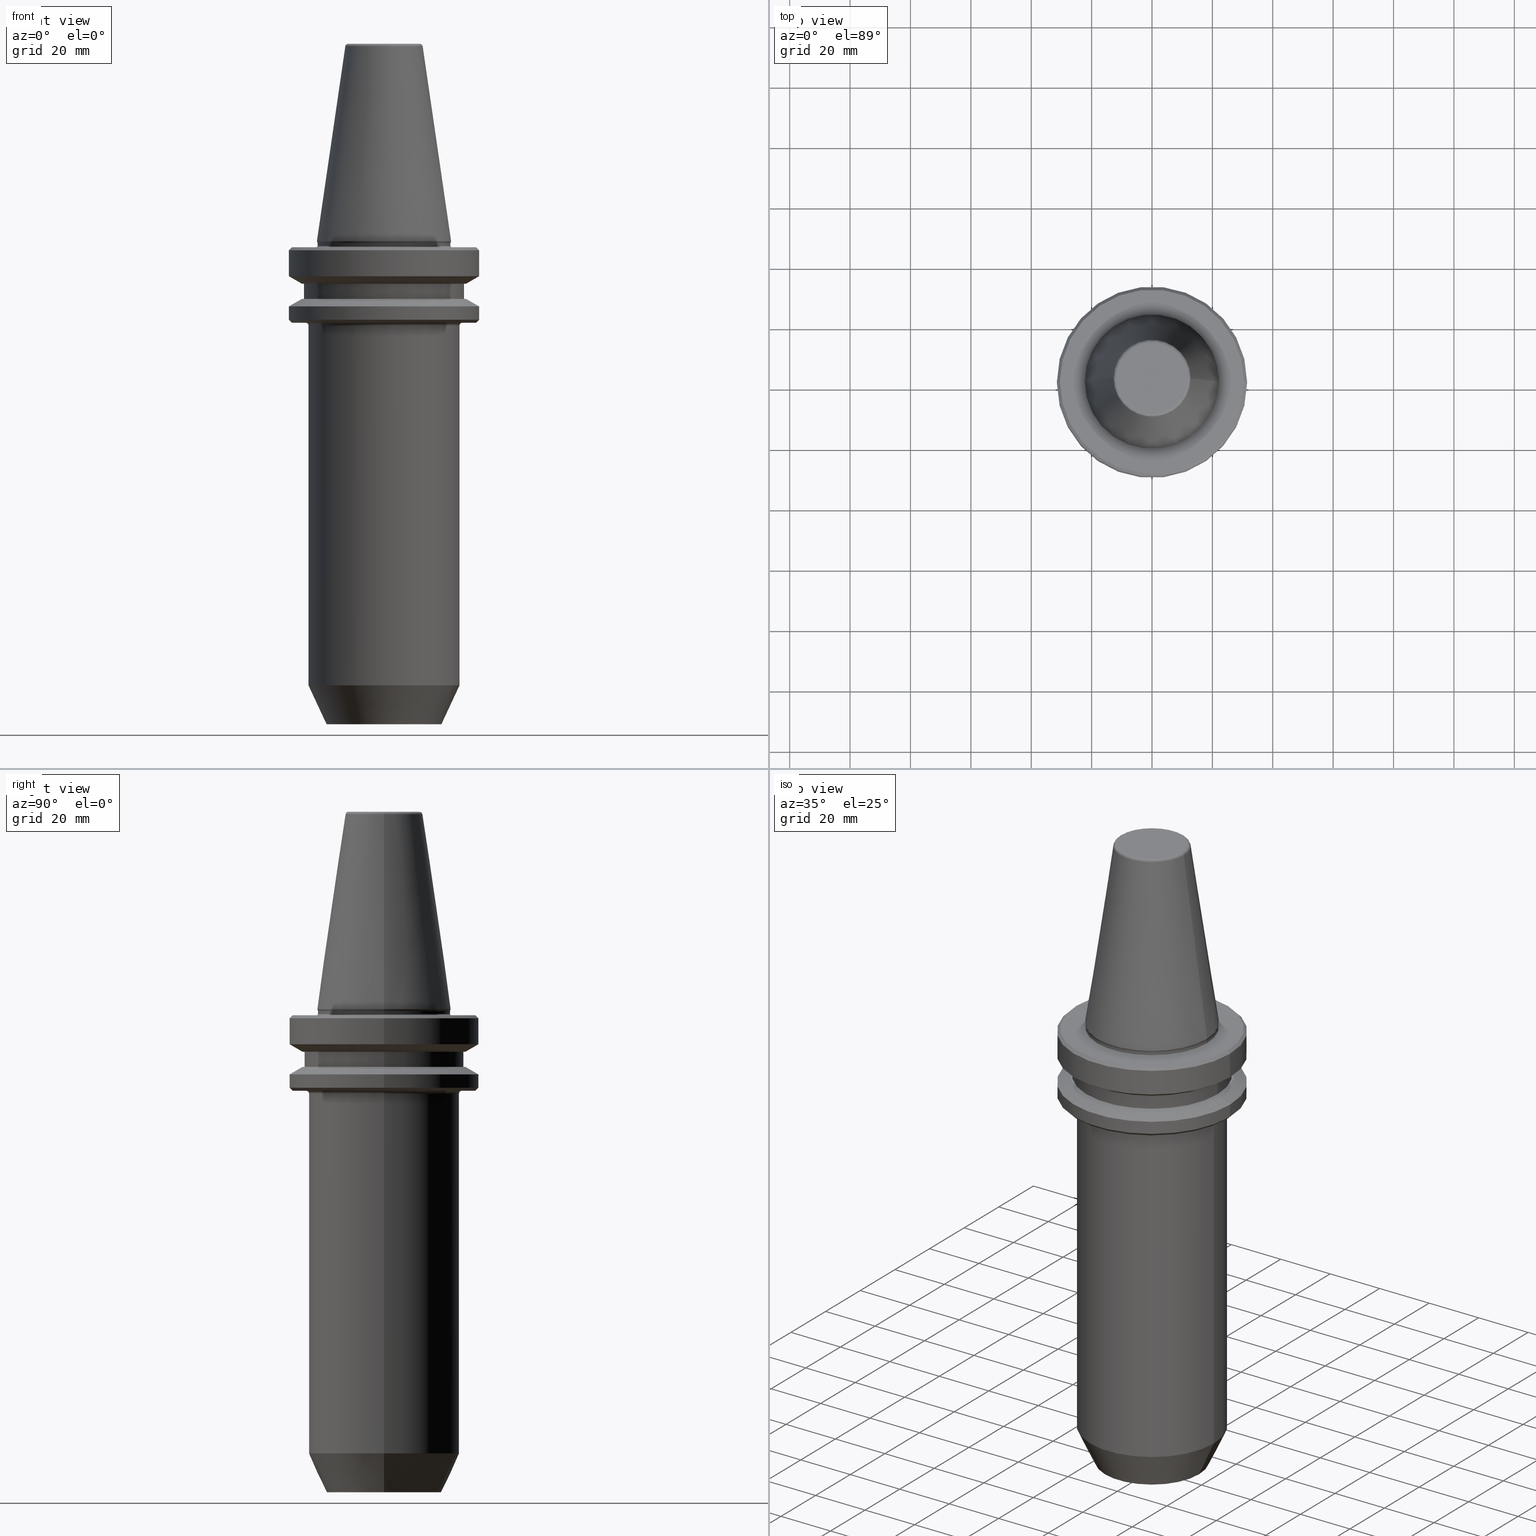
[diagram: canonical four-view strip — front | top / right | iso, engineering-drawing reading convention]
A machine part, canonical four-view strip (front | top / right | iso — engineering-drawing reading convention). The complete STEP part file that produces these views, byte-faithful:
ISO-10303-21;
HEADER;
FILE_DESCRIPTION (( 'STEP AP203' ),
    '1' );
FILE_NAME ('BT40 WE18 160 AD-6.3G15000 SL.STEP',
    '2019-05-22T08:56:52',
    ( '' ),
    ( '' ),
    'SwSTEP 2.0',
    'SolidWorks 2014',
    '' );
FILE_SCHEMA (( 'CONFIG_CONTROL_DESIGN' ));
ENDSEC;

DATA;
#1 = AXIS2_PLACEMENT_3D ( 'NONE', #707, #322, #690 ) ;
#2 = PERSON_AND_ORGANIZATION ( #427, #635 ) ;
#3 = CARTESIAN_POINT ( 'NONE',  ( 0.0000000000000000000, 0.0000000000000000000, -1.311286788340082500 ) ) ;
#4 = AXIS2_PLACEMENT_3D ( 'NONE', #951, #1022, #519 ) ;
#5 = DIRECTION ( 'NONE',  ( -0.0000000000000000000, -0.0000000000000000000, 1.000000000000000000 ) ) ;
#6 = AXIS2_PLACEMENT_3D ( 'NONE', #970, #688, #151 ) ;
#7 = APPROVAL_STATUS ( 'not_yet_approved' ) ;
#8 = ORIENTED_EDGE ( 'NONE', *, *, #317, .F. ) ;
#9 = AXIS2_PLACEMENT_3D ( 'NONE', #155, #249, #676 ) ;
#10 = AXIS2_PLACEMENT_3D ( 'NONE', #700, #517, #607 ) ;
#11 = ORIENTED_EDGE ( 'NONE', *, *, #787, .T. ) ;
#12 = DIRECTION ( 'NONE',  ( -1.000000000000000000, 0.0000000000000000000, 0.0000000000000000000 ) ) ;
#13 = AXIS2_PLACEMENT_3D ( 'NONE', #1014, #441, #989 ) ;
#14 = DATE_AND_TIME ( #474, #728 ) ;
#15 = DIRECTION ( 'NONE',  ( -0.8660254037844400400, 0.0000000000000000000, -0.4999999999999976100 ) ) ;
#16 = AXIS2_PLACEMENT_3D ( 'NONE', #93, #363, #630 ) ;
#17 = CARTESIAN_POINT ( 'NONE',  ( 31.49999999999986100, 3.857637417314145300E-015, -2.311286788340083400 ) ) ;
#18 = DIRECTION ( 'NONE',  ( 1.000000000000000000, 0.0000000000000000000, 0.0000000000000000000 ) ) ;
#19 = EDGE_LOOP ( 'NONE', ( #871, #223, #1001, #347 ) ) ;
#20 = VERTEX_POINT ( 'NONE', #338 ) ;
#21 = VERTEX_POINT ( 'NONE', #997 ) ;
#22 = LINE ( 'NONE', #816, #168 ) ;
#23 = ORIENTED_EDGE ( 'NONE', *, *, #73, .F. ) ;
#24 = DIRECTION ( 'NONE',  ( 1.000000000000000000, 0.0000000000000000000, 0.0000000000000000000 ) ) ;
#25 = EDGE_LOOP ( 'NONE', ( #310, #150, #167, #445 ) ) ;
#26 = AXIS2_PLACEMENT_3D ( 'NONE', #902, #256, #746 ) ;
#27 = LINE ( 'NONE', #925, #834 ) ;
#28 = COORDINATED_UNIVERSAL_TIME_OFFSET ( 5, 30, .AHEAD. ) ;
#29 = CARTESIAN_POINT ( 'NONE',  ( -22.02412295168547700, 2.697177167680937400E-015, 0.1368080573304758500 ) ) ;
#30 = TOROIDAL_SURFACE ( 'NONE', #10, 26.00000000000000400, 1.000000000000002700 ) ;
#31 = AXIS2_PLACEMENT_3D ( 'NONE', #238, #758, #358 ) ;
#32 = VECTOR ( 'NONE', #1019, 1000.000000000000000 ) ;
#33 = AXIS2_PLACEMENT_3D ( 'NONE', #494, #757, #1040 ) ;
#34 = AXIS2_PLACEMENT_3D ( 'NONE', #779, #740, #704 ) ;
#35 = ORIENTED_EDGE ( 'NONE', *, *, #160, .T. ) ;
#36 = AXIS2_PLACEMENT_3D ( 'NONE', #387, #146, #537 ) ;
#37 = ORIENTED_EDGE ( 'NONE', *, *, #91, .T. ) ;
#38 = AXIS2_PLACEMENT_3D ( 'NONE', #109, #390, #216 ) ;
#39 = CYLINDRICAL_SURFACE ( 'NONE', #192, 31.49999999999986100 ) ;
#40 = ORIENTED_EDGE ( 'NONE', *, *, #823, .T. ) ;
#41 = DIRECTION ( 'NONE',  ( 1.000000000000000000, 0.0000000000000000000, 0.0000000000000000000 ) ) ;
#42 = FACE_OUTER_BOUND ( 'NONE', #303, .T. ) ;
#43 = DIRECTION ( 'NONE',  ( 0.0000000000000000000, 0.0000000000000000000, -1.000000000000000000 ) ) ;
#44 = AXIS2_PLACEMENT_3D ( 'NONE', #502, #866, #553 ) ;
#45 = DIRECTION ( 'NONE',  ( -1.000000000000000000, 1.224646799147353900E-016, 0.0000000000000000000 ) ) ;
#46 = CARTESIAN_POINT ( 'NONE',  ( 31.50000000000019500, 0.0000000000000000000, -25.31128678844346400 ) ) ;
#47 = AXIS2_PLACEMENT_3D ( 'NONE', #65, #43, #529 ) ;
#48 = DIRECTION ( 'NONE',  ( 0.0000000000000000000, 0.0000000000000000000, -1.000000000000000000 ) ) ;
#49 = ORIENTED_EDGE ( 'NONE', *, *, #298, .F. ) ;
#50 = ORIENTED_EDGE ( 'NONE', *, *, #490, .F. ) ;
#51 = CIRCLE ( 'NONE', #200, 22.22499999999971700 ) ;
#52 = ORIENTED_EDGE ( 'NONE', *, *, #515, .F. ) ;
#53 = CARTESIAN_POINT ( 'NONE',  ( 31.49999999999986100, 0.0000000000000000000, 82.74845858742440900 ) ) ;
#54 = CARTESIAN_POINT ( 'NONE',  ( 0.0000000000000000000, 0.0000000000000000000, 65.08871321166032000 ) ) ;
#55 = ORIENTED_EDGE ( 'NONE', *, *, #784, .T. ) ;
#56 = PLANE ( 'NONE',  #33 ) ;
#57 = EDGE_CURVE ( 'NONE', #215, #909, #901, .T. ) ;
#58 = EDGE_LOOP ( 'NONE', ( #49, #270, #212, #314 ) ) ;
#59 = CARTESIAN_POINT ( 'NONE',  ( 0.0000000000000000000, 0.0000000000000000000, -146.4442452652828000 ) ) ;
#60 = LINE ( 'NONE', #404, #118 ) ;
#61 = AXIS2_PLACEMENT_3D ( 'NONE', #455, #723, #652 ) ;
#62 = DIRECTION ( 'NONE',  ( 1.224646799147353200E-016, 1.000000000000000000, 0.0000000000000000000 ) ) ;
#63 = EDGE_CURVE ( 'NONE', #714, #312, #892, .T. ) ;
#64 = AXIS2_PLACEMENT_3D ( 'NONE', #268, #987, #449 ) ;
#65 = CARTESIAN_POINT ( 'NONE',  ( 0.0000000000000000000, 0.0000000000000000000, -2.311286788340083400 ) ) ;
#66 = EDGE_CURVE ( 'NONE', #741, #583, #908, .T. ) ;
#67 = AXIS2_PLACEMENT_3D ( 'NONE', #566, #174, #1025 ) ;
#68 = CARTESIAN_POINT ( 'NONE',  ( -26.50000000000007800, 3.245314017740495600E-015, -13.41128678834002700 ) ) ;
#69 = CARTESIAN_POINT ( 'NONE',  ( 0.0000000000000000000, 0.0000000000000000000, -0.8112867883400820500 ) ) ;
#70 = VERTEX_POINT ( 'NONE', #405 ) ;
#71 = VERTEX_POINT ( 'NONE', #668 ) ;
#72 = ORIENTED_EDGE ( 'NONE', *, *, #63, .F. ) ;
#73 = EDGE_CURVE ( 'NONE', #288, #277, #874, .T. ) ;
#74 = CONICAL_SURFACE ( 'NONE', #227, 22.22499999999971700, 0.1448138077623186700 ) ;
#75 = ORIENTED_EDGE ( 'NONE', *, *, #218, .F. ) ;
#76 = CARTESIAN_POINT ( 'NONE',  ( 0.0000000000000000000, 0.0000000000000000000, -5.551115123125782700E-014 ) ) ;
#77 = AXIS2_PLACEMENT_3D ( 'NONE', #831, #521, #964 ) ;
#78 = CARTESIAN_POINT ( 'NONE',  ( -25.00000000000000000, 3.061616997868383000E-015, 82.74845858742440900 ) ) ;
#79 = DIRECTION ( 'NONE',  ( -1.000000000000000000, 0.0000000000000000000, -0.0000000000000000000 ) ) ;
#80 = EDGE_CURVE ( 'NONE', #761, #940, #875, .T. ) ;
#81 = CARTESIAN_POINT ( 'NONE',  ( 0.0000000000000000000, 0.0000000000000000000, -2.311286788340083400 ) ) ;
#82 = CARTESIAN_POINT ( 'NONE',  ( 0.0000000000000000000, 0.0000000000000000000, 0.6887132116596417200 ) ) ;
#83 = AXIS2_PLACEMENT_3D ( 'NONE', #318, #576, #675 ) ;
#84 = EDGE_LOOP ( 'NONE', ( #214, #906 ) ) ;
#85 = CYLINDRICAL_SURFACE ( 'NONE', #162, 25.00000000000000000 ) ;
#86 = ORIENTED_EDGE ( 'NONE', *, *, #137, .T. ) ;
#87 = DIRECTION ( 'NONE',  ( -0.0000000000000000000, -0.0000000000000000000, 1.000000000000000000 ) ) ;
#88 = CIRCLE ( 'NONE', #360, 22.49999999999985400 ) ;
#89 = AXIS2_PLACEMENT_3D ( 'NONE', #1053, #325, #1024 ) ;
#90 = CIRCLE ( 'NONE', #302, 25.00000000000000000 ) ;
#91 = EDGE_CURVE ( 'NONE', #422, #601, #862, .T. ) ;
#92 = CIRCLE ( 'NONE', #346, 26.50000000000007800 ) ;
#93 = CARTESIAN_POINT ( 'NONE',  ( 0.0000000000000000000, 0.0000000000000000000, -26.31128678844368800 ) ) ;
#94 = CARTESIAN_POINT ( 'NONE',  ( 0.0000000000000000000, 0.0000000000000000000, -13.41128678834002700 ) ) ;
#95 = ADVANCED_FACE ( 'NONE', ( #888 ), #316, .F. ) ;
#96 = AXIS2_PLACEMENT_3D ( 'NONE', #545, #958, #219 ) ;
#97 = CC_DESIGN_APPROVAL ( #1042, ( #966 ) ) ;
#98 = EDGE_CURVE ( 'NONE', #444, #378, #840, .T. ) ;
#99 = ORIENTED_EDGE ( 'NONE', *, *, #108, .T. ) ;
#100 = ORIENTED_EDGE ( 'NONE', *, *, #515, .T. ) ;
#101 = AXIS2_PLACEMENT_3D ( 'NONE', #252, #914, #555 ) ;
#102 = CIRCLE ( 'NONE', #153, 27.16962701892167300 ) ;
#103 = ORIENTED_EDGE ( 'NONE', *, *, #448, .F. ) ;
#104 = APPROVAL_ROLE ( '' ) ;
#105 = EDGE_CURVE ( 'NONE', #714, #696, #852, .T. ) ;
#106 = AXIS2_PLACEMENT_3D ( 'NONE', #868, #124, #120 ) ;
#107 = CARTESIAN_POINT ( 'NONE',  ( 0.0000000000000000000, 0.0000000000000000000, -20.91142879476059900 ) ) ;
#108 = EDGE_CURVE ( 'NONE', #215, #598, #854, .T. ) ;
#109 = CARTESIAN_POINT ( 'NONE',  ( 0.0000000000000000000, 0.0000000000000000000, -20.91142879476059900 ) ) ;
#110 = EDGE_CURVE ( 'NONE', #909, #696, #809, .T. ) ;
#111 = ORIENTED_EDGE ( 'NONE', *, *, #73, .T. ) ;
#112 = FACE_OUTER_BOUND ( 'NONE', #241, .T. ) ;
#113 = AXIS2_PLACEMENT_3D ( 'NONE', #220, #1045, #558 ) ;
#114 = VERTEX_POINT ( 'NONE', #417 ) ;
#115 = CARTESIAN_POINT ( 'NONE',  ( -22.22499999999971700, 2.721777511104957700E-015, 0.6887132116596417200 ) ) ;
#116 = DIRECTION ( 'NONE',  ( -0.0000000000000000000, -0.0000000000000000000, 1.000000000000000000 ) ) ;
#117 = AXIS2_PLACEMENT_3D ( 'NONE', #224, #794, #899 ) ;
#118 = VECTOR ( 'NONE', #618, 1000.000000000000000 ) ;
#119 = ORIENTED_EDGE ( 'NONE', *, *, #176, .F. ) ;
#120 = DIRECTION ( 'NONE',  ( 1.000000000000000000, 0.0000000000000000000, 0.0000000000000000000 ) ) ;
#121 = DIRECTION ( 'NONE',  ( -0.0000000000000000000, -0.0000000000000000000, 1.000000000000000000 ) ) ;
#122 = EDGE_CURVE ( 'NONE', #154, #965, #793, .T. ) ;
#123 = EDGE_CURVE ( 'NONE', #714, #633, #780, .T. ) ;
#124 = DIRECTION ( 'NONE',  ( -0.0000000000000000000, -0.0000000000000000000, 1.000000000000000000 ) ) ;
#125 = DIRECTION ( 'NONE',  ( -0.0000000000000000000, -0.0000000000000000000, 1.000000000000000000 ) ) ;
#126 =( NAMED_UNIT ( * ) PLANE_ANGLE_UNIT ( ) SI_UNIT ( $, .RADIAN. ) );
#127 = CARTESIAN_POINT ( 'NONE',  ( 0.0000000000000000000, 0.0000000000000000000, -13.41128678834002700 ) ) ;
#128 = EDGE_LOOP ( 'NONE', ( #361, #406, #1027, #217 ) ) ;
#129 = AXIS2_PLACEMENT_3D ( 'NONE', #69, #977, #639 ) ;
#130 = ORIENTED_EDGE ( 'NONE', *, *, #569, .T. ) ;
#131 = ORIENTED_EDGE ( 'NONE', *, *, #560, .F. ) ;
#132 = EDGE_CURVE ( 'NONE', #210, #20, #822, .T. ) ;
#133 = CIRCLE ( 'NONE', #313, 0.4000000000001126500 ) ;
#134 = ORIENTED_EDGE ( 'NONE', *, *, #713, .F. ) ;
#135 = DIRECTION ( 'NONE',  ( -0.0000000000000000000, -0.0000000000000000000, 1.000000000000000000 ) ) ;
#136 = DIRECTION ( 'NONE',  ( -0.0000000000000000000, -0.0000000000000000000, 1.000000000000000000 ) ) ;
#137 = EDGE_CURVE ( 'NONE', #761, #601, #614, .T. ) ;
#138 = DIRECTION ( 'NONE',  ( -0.0000000000000000000, -0.0000000000000000000, 1.000000000000000000 ) ) ;
#139 = FACE_BOUND ( 'NONE', #293, .T. ) ;
#140 = CARTESIAN_POINT ( 'NONE',  ( 0.0000000000000000000, 0.0000000000000000000, -27.31128678844368800 ) ) ;
#141 = AXIS2_PLACEMENT_3D ( 'NONE', #928, #157, #379 ) ;
#142 = AXIS2_PLACEMENT_3D ( 'NONE', #435, #692, #1043 ) ;
#143 = APPROVAL_PERSON_ORGANIZATION ( #2, #783, #104 ) ;
#144 = DIRECTION ( 'NONE',  ( -0.0000000000000000000, -0.0000000000000000000, 1.000000000000000000 ) ) ;
#145 = EDGE_CURVE ( 'NONE', #334, #777, #213, .T. ) ;
#146 = DIRECTION ( 'NONE',  ( -0.0000000000000000000, -0.0000000000000000000, 1.000000000000000000 ) ) ;
#147 = ORIENTED_EDGE ( 'NONE', *, *, #80, .T. ) ;
#148 = EDGE_CURVE ( 'NONE', #114, #965, #659, .T. ) ;
#149 = DIRECTION ( 'NONE',  ( -0.0000000000000000000, -0.0000000000000000000, 1.000000000000000000 ) ) ;
#150 = ORIENTED_EDGE ( 'NONE', *, *, #691, .F. ) ;
#151 = DIRECTION ( 'NONE',  ( 1.000000000000000000, 0.0000000000000000000, 0.0000000000000000000 ) ) ;
#152 = CIRCLE ( 'NONE', #182, 31.49999999999986100 ) ;
#153 = AXIS2_PLACEMENT_3D ( 'NONE', #932, #369, #170 ) ;
#154 = VERTEX_POINT ( 'NONE', #567 ) ;
#155 = CARTESIAN_POINT ( 'NONE',  ( 0.0000000000000000000, 0.0000000000000000000, -13.41128678834002700 ) ) ;
#156 = CONICAL_SURFACE ( 'NONE', #204, 22.02412295168547700, 0.3490658503993923600 ) ;
#157 = DIRECTION ( 'NONE',  ( -0.0000000000000000000, -0.0000000000000000000, 1.000000000000000000 ) ) ;
#158 = AXIS2_PLACEMENT_3D ( 'NONE', #760, #442, #609 ) ;
#159 = VECTOR ( 'NONE', #149, 1000.000000000000000 ) ;
#160 = EDGE_CURVE ( 'NONE', #633, #563, #88, .T. ) ;
#161 = EDGE_CURVE ( 'NONE', #1029, #21, #634, .T. ) ;
#162 = AXIS2_PLACEMENT_3D ( 'NONE', #641, #580, #808 ) ;
#163 = DIRECTION ( 'NONE',  ( -0.0000000000000000000, -0.0000000000000000000, 1.000000000000000000 ) ) ;
#164 = EDGE_LOOP ( 'NONE', ( #8, #320, #672, #624 ) ) ;
#165 = ORIENTED_EDGE ( 'NONE', *, *, #759, .T. ) ;
#166 = AXIS2_PLACEMENT_3D ( 'NONE', #594, #48, #275 ) ;
#167 = ORIENTED_EDGE ( 'NONE', *, *, #482, .T. ) ;
#168 = VECTOR ( 'NONE', #190, 1000.000000000000000 ) ;
#169 = FACE_OUTER_BOUND ( 'NONE', #128, .T. ) ;
#170 = DIRECTION ( 'NONE',  ( 1.000000000000000000, 0.0000000000000000000, 0.0000000000000000000 ) ) ;
#171 = AXIS2_PLACEMENT_3D ( 'NONE', #880, #1041, #864 ) ;
#172 = VECTOR ( 'NONE', #440, 999.9999999999998900 ) ;
#173 = TOROIDAL_SURFACE ( 'NONE', #206, 22.39999999999986400, 0.4000000000001126500 ) ;
#174 = DIRECTION ( 'NONE',  ( -0.0000000000000000000, -0.0000000000000000000, 1.000000000000000000 ) ) ;
#175 = EDGE_CURVE ( 'NONE', #422, #696, #133, .T. ) ;
#176 = EDGE_CURVE ( 'NONE', #583, #741, #90, .T. ) ;
#177 = CARTESIAN_POINT ( 'NONE',  ( -31.50000000000019500, 3.857637417314186400E-015, 82.74845858742440900 ) ) ;
#178 = ADVANCED_FACE ( 'NONE', ( #139, #507 ), #497, .F. ) ;
#179 = AXIS2_PLACEMENT_3D ( 'NONE', #3, #1032, #959 ) ;
#180 = ORIENTED_EDGE ( 'NONE', *, *, #298, .T. ) ;
#181 = ORIENTED_EDGE ( 'NONE', *, *, #211, .F. ) ;
#182 = AXIS2_PLACEMENT_3D ( 'NONE', #81, #670, #235 ) ;
#183 = CONICAL_SURFACE ( 'NONE', #166, 22.22499999999971700, 0.1448138077623186700 ) ;
#184 = EDGE_LOOP ( 'NONE', ( #50, #705, #734, #564 ) ) ;
#185 = FACE_OUTER_BOUND ( 'NONE', #654, .T. ) ;
#186 = FACE_OUTER_BOUND ( 'NONE', #848, .T. ) ;
#187 = EDGE_CURVE ( 'NONE', #312, #909, #772, .T. ) ;
#188 = CIRCLE ( 'NONE', #222, 22.02412295168547700 ) ;
#189 = EDGE_CURVE ( 'NONE', #304, #741, #718, .T. ) ;
#190 = DIRECTION ( 'NONE',  ( -0.7071067811865474600, 8.659560562354931600E-017, 0.7071067811865475700 ) ) ;
#191 = FACE_OUTER_BOUND ( 'NONE', #438, .T. ) ;
#192 = AXIS2_PLACEMENT_3D ( 'NONE', #891, #432, #617 ) ;
#193 = CARTESIAN_POINT ( 'NONE',  ( 0.0000000000000000000, 0.0000000000000000000, 0.0000000000000000000 ) ) ;
#194 = ORIENTED_EDGE ( 'NONE', *, *, #689, .F. ) ;
#195 = ORIENTED_EDGE ( 'NONE', *, *, #448, .T. ) ;
#196 = EDGE_LOOP ( 'NONE', ( #410, #681, #461, #789 ) ) ;
#197 = CARTESIAN_POINT ( 'NONE',  ( 0.0000000000000000000, 0.0000000000000000000, -26.31128678844368800 ) ) ;
#198 = CARTESIAN_POINT ( 'NONE',  ( 0.0000000000000000000, 0.0000000000000000000, -27.31128678844368800 ) ) ;
#199 = DATE_AND_TIME ( #407, #284 ) ;
#200 = AXIS2_PLACEMENT_3D ( 'NONE', #774, #87, #916 ) ;
#201 = ORIENTED_EDGE ( 'NONE', *, *, #500, .F. ) ;
#202 = CIRCLE ( 'NONE', #231, 1.000000000000000900 ) ;
#203 = DIRECTION ( 'NONE',  ( 1.000000000000000000, 0.0000000000000000000, 0.0000000000000000000 ) ) ;
#204 = AXIS2_PLACEMENT_3D ( 'NONE', #843, #374, #1034 ) ;
#205 = ADVANCED_FACE ( 'NONE', ( #280 ), #339, .T. ) ;
#206 = AXIS2_PLACEMENT_3D ( 'NONE', #812, #516, #345 ) ;
#207 = VECTOR ( 'NONE', #246, 1000.000000000000000 ) ;
#208 = PERSON_AND_ORGANIZATION_ROLE ( 'classification_officer' ) ;
#209 = AXIS2_PLACEMENT_3D ( 'NONE', #919, #351, #332 ) ;
#210 = VERTEX_POINT ( 'NONE', #732 ) ;
#211 = EDGE_CURVE ( 'NONE', #685, #606, #755, .T. ) ;
#212 = ORIENTED_EDGE ( 'NONE', *, *, #475, .T. ) ;
#213 = CIRCLE ( 'NONE', #366, 31.49999999999986100 ) ;
#214 = ORIENTED_EDGE ( 'NONE', *, *, #132, .F. ) ;
#215 = VERTEX_POINT ( 'NONE', #597 ) ;
#216 = DIRECTION ( 'NONE',  ( 1.000000000000000000, 0.0000000000000000000, 0.0000000000000000000 ) ) ;
#217 = ORIENTED_EDGE ( 'NONE', *, *, #123, .F. ) ;
#218 = EDGE_CURVE ( 'NONE', #606, #444, #662, .T. ) ;
#219 = DIRECTION ( 'NONE',  ( 1.000000000000000000, 0.0000000000000000000, 0.0000000000000000000 ) ) ;
#220 = CARTESIAN_POINT ( 'NONE',  ( 0.0000000000000000000, 0.0000000000000000000, -10.91114478202370800 ) ) ;
#221 = EDGE_LOOP ( 'NONE', ( #990, #165, #1031, #818 ) ) ;
#222 = AXIS2_PLACEMENT_3D ( 'NONE', #342, #815, #946 ) ;
#223 = ORIENTED_EDGE ( 'NONE', *, *, #666, .T. ) ;
#224 = CARTESIAN_POINT ( 'NONE',  ( 0.0000000000000000000, 0.0000000000000000000, -25.31128678844346400 ) ) ;
#225 = DIRECTION ( 'NONE',  ( -0.0000000000000000000, -0.0000000000000000000, 1.000000000000000000 ) ) ;
#226 = ORIENTED_EDGE ( 'NONE', *, *, #782, .F. ) ;
#227 = AXIS2_PLACEMENT_3D ( 'NONE', #82, #596, #12 ) ;
#228 = DIRECTION ( 'NONE',  ( 1.000000000000000000, 0.0000000000000000000, 0.0000000000000000000 ) ) ;
#229 = CARTESIAN_POINT ( 'NONE',  ( 0.0000000000000000000, 0.0000000000000000000, -5.551115123125782700E-014 ) ) ;
#230 = DIRECTION ( 'NONE',  ( 0.0000000000000000000, 0.0000000000000000000, -1.000000000000000000 ) ) ;
#231 = AXIS2_PLACEMENT_3D ( 'NONE', #278, #460, #301 ) ;
#232 = FACE_OUTER_BOUND ( 'NONE', #58, .T. ) ;
#233 = DIRECTION ( 'NONE',  ( 0.0000000000000000000, 0.0000000000000000000, -1.000000000000000000 ) ) ;
#234 = AXIS2_PLACEMENT_3D ( 'NONE', #983, #247, #45 ) ;
#235 = DIRECTION ( 'NONE',  ( 1.000000000000000000, 0.0000000000000000000, 0.0000000000000000000 ) ) ;
#236 = DIRECTION ( 'NONE',  ( -1.000000000000000000, 1.224646799147359900E-016, 0.0000000000000000000 ) ) ;
#237 = DIRECTION ( 'NONE',  ( -0.0000000000000000000, -0.0000000000000000000, 1.000000000000000000 ) ) ;
#238 = CARTESIAN_POINT ( 'NONE',  ( 0.0000000000000000000, 26.50000000000007800, -13.41128678834002700 ) ) ;
#239 = DIRECTION ( 'NONE',  ( -0.0000000000000000000, -0.0000000000000000000, 1.000000000000000000 ) ) ;
#240 = EDGE_LOOP ( 'NONE', ( #953, #544, #11, #846 ) ) ;
#241 = EDGE_LOOP ( 'NONE', ( #980, #180, #321, #348 ) ) ;
#242 = AXIS2_PLACEMENT_3D ( 'NONE', #520, #715, #926 ) ;
#243 = ORIENTED_EDGE ( 'NONE', *, *, #823, .F. ) ;
#244 = DIRECTION ( 'NONE',  ( -0.0000000000000000000, -0.0000000000000000000, 1.000000000000000000 ) ) ;
#245 = ORIENTED_EDGE ( 'NONE', *, *, #326, .F. ) ;
#246 = DIRECTION ( 'NONE',  ( -0.0000000000000000000, -0.0000000000000000000, 1.000000000000000000 ) ) ;
#247 = DIRECTION ( 'NONE',  ( 1.224646799147353200E-016, 1.000000000000000000, 0.0000000000000000000 ) ) ;
#248 = AXIS2_PLACEMENT_3D ( 'NONE', #457, #855, #637 ) ;
#249 = DIRECTION ( 'NONE',  ( -0.0000000000000000000, -0.0000000000000000000, 1.000000000000000000 ) ) ;
#250 = EDGE_CURVE ( 'NONE', #210, #304, #742, .T. ) ;
#251 = CARTESIAN_POINT ( 'NONE',  ( 31.50000000000019500, 0.0000000000000000000, 82.74845858742440900 ) ) ;
#252 = CARTESIAN_POINT ( 'NONE',  ( 0.0000000000000000000, 0.0000000000000000000, -18.41128678844344800 ) ) ;
#253 = CARTESIAN_POINT ( 'NONE',  ( -31.49999999999986100, 0.0000000000000000000, -2.311286788340083400 ) ) ;
#254 = ORIENTED_EDGE ( 'NONE', *, *, #698, .T. ) ;
#255 = ORIENTED_EDGE ( 'NONE', *, *, #528, .F. ) ;
#256 = DIRECTION ( 'NONE',  ( -0.0000000000000000000, -0.0000000000000000000, 1.000000000000000000 ) ) ;
#257 = AXIS2_PLACEMENT_3D ( 'NONE', #76, #967, #436 ) ;
#258 = LINE ( 'NONE', #643, #172 ) ;
#259 = ORIENTED_EDGE ( 'NONE', *, *, #560, .T. ) ;
#260 = FACE_OUTER_BOUND ( 'NONE', #620, .T. ) ;
#261 = TOROIDAL_SURFACE ( 'NONE', #36, 22.49999999999985400, 0.5000000000000282000 ) ;
#262 = ADVANCED_FACE ( 'NONE', ( #260 ), #632, .T. ) ;
#263 = CIRCLE ( 'NONE', #269, 25.00000000000000000 ) ;
#264 = CARTESIAN_POINT ( 'NONE',  ( -31.50000000000019500, 0.0000000000000000000, -20.91142879476059900 ) ) ;
#265 = PERSON_AND_ORGANIZATION ( #427, #635 ) ;
#266 = VECTOR ( 'NONE', #995, 1000.000000000000000 ) ;
#267 = LINE ( 'NONE', #947, #32 ) ;
#268 = CARTESIAN_POINT ( 'NONE',  ( 0.0000000000000000000, 0.0000000000000000000, -159.3112867883404000 ) ) ;
#269 = AXIS2_PLACEMENT_3D ( 'NONE', #59, #484, #1020 ) ;
#270 = ORIENTED_EDGE ( 'NONE', *, *, #589, .F. ) ;
#271 = ADVANCED_FACE ( 'NONE', ( #724 ), #337, .T. ) ;
#272 = AXIS2_PLACEMENT_3D ( 'NONE', #510, #976, #593 ) ;
#273 = CIRCLE ( 'NONE', #44, 31.50000000000019500 ) ;
#274 = ORIENTED_EDGE ( 'NONE', *, *, #91, .F. ) ;
#275 = DIRECTION ( 'NONE',  ( -1.000000000000000000, 0.0000000000000000000, 0.0000000000000000000 ) ) ;
#276 = CONICAL_SURFACE ( 'NONE', #47, 31.49999999999986100, 0.7853981633974482800 ) ;
#277 = VERTEX_POINT ( 'NONE', #616 ) ;
#278 = CARTESIAN_POINT ( 'NONE',  ( 26.00000000000000400, 0.0000000000000000000, -27.31128678844368800 ) ) ;
#279 = AXIS2_PLACEMENT_3D ( 'NONE', #107, #1013, #426 ) ;
#280 = FACE_OUTER_BOUND ( 'NONE', #717, .T. ) ;
#281 = PERSON_AND_ORGANIZATION ( #427, #635 ) ;
#282 = DIRECTION ( 'NONE',  ( -0.0000000000000000000, -0.0000000000000000000, 1.000000000000000000 ) ) ;
#283 = AXIS2_PLACEMENT_3D ( 'NONE', #458, #671, #988 ) ;
#284 = LOCAL_TIME ( 14, 26, 52.00000000000000000, #913 ) ;
#285 = AXIS2_PLACEMENT_3D ( 'NONE', #54, #978, #1023 ) ;
#286 = AXIS2_PLACEMENT_3D ( 'NONE', #952, #136, #837 ) ;
#287 = ADVANCED_FACE ( 'NONE', ( #621, #352 ), #414, .F. ) ;
#288 = VERTEX_POINT ( 'NONE', #46 ) ;
#289 = TOROIDAL_SURFACE ( 'NONE', #300, 11.82266927716790800, 1.000000000000029100 ) ;
#290 = ORIENTED_EDGE ( 'NONE', *, *, #148, .T. ) ;
#291 = AXIS2_PLACEMENT_3D ( 'NONE', #623, #282, #763 ) ;
#292 = CC_DESIGN_PERSON_AND_ORGANIZATION_ASSIGNMENT ( #281, #857, ( #966 ) ) ;
#293 = EDGE_LOOP ( 'NONE', ( #582, #226 ) ) ;
#294 = AXIS2_PLACEMENT_3D ( 'NONE', #591, #504, #905 ) ;
#295 = VECTOR ( 'NONE', #503, 999.9999999999998900 ) ;
#296 = EDGE_LOOP ( 'NONE', ( #75, #40, #397, #329 ) ) ;
#297 = AXIS2_PLACEMENT_3D ( 'NONE', #938, #996, #1046 ) ;
#298 = EDGE_CURVE ( 'NONE', #71, #583, #756, .T. ) ;
#299 = LINE ( 'NONE', #17, #266 ) ;
#300 = AXIS2_PLACEMENT_3D ( 'NONE', #743, #814, #1011 ) ;
#301 = DIRECTION ( 'NONE',  ( 0.0000000000000000000, 0.0000000000000000000, -1.000000000000000000 ) ) ;
#302 = AXIS2_PLACEMENT_3D ( 'NONE', #198, #479, #412 ) ;
#303 = EDGE_LOOP ( 'NONE', ( #993, #804, #883, #658 ) ) ;
#304 = VERTEX_POINT ( 'NONE', #701 ) ;
#305 = APPROVAL_STATUS ( 'not_yet_approved' ) ;
#306 = DIRECTION ( 'NONE',  ( -0.0000000000000000000, -0.0000000000000000000, 1.000000000000000000 ) ) ;
#307 = CONICAL_SURFACE ( 'NONE', #340, 19.00000000000000000, 0.4363323129985753300 ) ;
#308 = EDGE_CURVE ( 'NONE', #601, #598, #602, .T. ) ;
#309 = VECTOR ( 'NONE', #306, 1000.000000000000000 ) ;
#310 = ORIENTED_EDGE ( 'NONE', *, *, #137, .F. ) ;
#311 = APPROVAL ( #584, 'UNSPECIFIED' ) ;
#312 = VERTEX_POINT ( 'NONE', #972 ) ;
#313 = AXIS2_PLACEMENT_3D ( 'NONE', #867, #408, #929 ) ;
#314 = ORIENTED_EDGE ( 'NONE', *, *, #66, .T. ) ;
#315 = APPROVAL_DATE_TIME ( #467, #1042 ) ;
#316 = PLANE ( 'NONE',  #385 ) ;
#317 = EDGE_CURVE ( 'NONE', #364, #777, #702, .T. ) ;
#318 = CARTESIAN_POINT ( 'NONE',  ( 0.0000000000000000000, 0.0000000000000000000, -146.4442452652828000 ) ) ;
#319 = ORIENTED_EDGE ( 'NONE', *, *, #80, .F. ) ;
#320 = ORIENTED_EDGE ( 'NONE', *, *, #468, .T. ) ;
#321 = ORIENTED_EDGE ( 'NONE', *, *, #176, .T. ) ;
#322 = DIRECTION ( 'NONE',  ( 0.0000000000000000000, 0.0000000000000000000, -1.000000000000000000 ) ) ;
#323 = AXIS2_PLACEMENT_3D ( 'NONE', #94, #125, #719 ) ;
#324 = PERSON_AND_ORGANIZATION ( #427, #635 ) ;
#325 = DIRECTION ( 'NONE',  ( -0.0000000000000000000, -0.0000000000000000000, 1.000000000000000000 ) ) ;
#326 = EDGE_CURVE ( 'NONE', #21, #1029, #684, .T. ) ;
#327 = APPLICATION_PROTOCOL_DEFINITION ( 'international standard', 'config_control_design', 1994, #801 ) ;
#328 = CARTESIAN_POINT ( 'NONE',  ( 0.0000000000000000000, 0.0000000000000000000, -159.3112867883404000 ) ) ;
#329 = ORIENTED_EDGE ( 'NONE', *, *, #98, .F. ) ;
#330 = AXIS2_PLACEMENT_3D ( 'NONE', #893, #446, #744 ) ;
#331 = ORIENTED_EDGE ( 'NONE', *, *, #586, .T. ) ;
#332 = DIRECTION ( 'NONE',  ( 1.000000000000000000, 0.0000000000000000000, 0.0000000000000000000 ) ) ;
#333 = CARTESIAN_POINT ( 'NONE',  ( -25.00000000000000000, 3.061616997868383000E-015, -146.4442452652828000 ) ) ;
#334 = VERTEX_POINT ( 'NONE', #766 ) ;
#335 = CC_DESIGN_PERSON_AND_ORGANIZATION_ASSIGNMENT ( #265, #425, ( #796 ) ) ;
#336 = ORIENTED_EDGE ( 'NONE', *, *, #123, .T. ) ;
#337 = CONICAL_SURFACE ( 'NONE', #323, 27.16962701892278200, 1.047197551196600300 ) ;
#338 = CARTESIAN_POINT ( 'NONE',  ( -19.00000000000000000, 2.694222958124177200E-015, -159.3112867883404000 ) ) ;
#339 = CONICAL_SURFACE ( 'NONE', #355, 22.02412295168547700, 0.3490658503993923600 ) ;
#340 = AXIS2_PLACEMENT_3D ( 'NONE', #590, #739, #434 ) ;
#341 = DIRECTION ( 'NONE',  ( 1.000000000000000000, 0.0000000000000000000, 0.0000000000000000000 ) ) ;
#342 = CARTESIAN_POINT ( 'NONE',  ( 0.0000000000000000000, 0.0000000000000000000, 0.1368080573304758500 ) ) ;
#343 = CARTESIAN_POINT ( 'NONE',  ( 27.16962701892278200, 0.0000000000000000000, -13.41128678834002700 ) ) ;
#344 = ADVANCED_FACE ( 'NONE', ( #381 ), #600, .T. ) ;
#345 = DIRECTION ( 'NONE',  ( 1.000000000000000000, 0.0000000000000000000, 0.0000000000000000000 ) ) ;
#346 = AXIS2_PLACEMENT_3D ( 'NONE', #439, #890, #341 ) ;
#347 = ORIENTED_EDGE ( 'NONE', *, *, #656, .F. ) ;
#348 = ORIENTED_EDGE ( 'NONE', *, *, #475, .F. ) ;
#349 = AXIS2_PLACEMENT_3D ( 'NONE', #542, #116, #581 ) ;
#350 = FACE_OUTER_BOUND ( 'NONE', #832, .T. ) ;
#351 = DIRECTION ( 'NONE',  ( -0.0000000000000000000, -0.0000000000000000000, 1.000000000000000000 ) ) ;
#352 = FACE_OUTER_BOUND ( 'NONE', #961, .T. ) ;
#353 = AXIS2_PLACEMENT_3D ( 'NONE', #776, #230, #79 ) ;
#354 = CONICAL_SURFACE ( 'NONE', #279, 31.50000000000019500, 1.047197551196600500 ) ;
#355 = AXIS2_PLACEMENT_3D ( 'NONE', #605, #798, #391 ) ;
#356 = FACE_BOUND ( 'NONE', #459, .T. ) ;
#357 = AXIS2_PLACEMENT_3D ( 'NONE', #197, #956, #18 ) ;
#358 = DIRECTION ( 'NONE',  ( 1.000000000000000000, 0.0000000000000000000, 0.0000000000000000000 ) ) ;
#359 = ORIENTED_EDGE ( 'NONE', *, *, #820, .T. ) ;
#360 = AXIS2_PLACEMENT_3D ( 'NONE', #903, #512, #24 ) ;
#361 = ORIENTED_EDGE ( 'NONE', *, *, #754, .F. ) ;
#362 = EDGE_CURVE ( 'NONE', #20, #394, #1049, .T. ) ;
#363 = DIRECTION ( 'NONE',  ( -0.0000000000000000000, -0.0000000000000000000, 1.000000000000000000 ) ) ;
#364 = VERTEX_POINT ( 'NONE', #562 ) ;
#365 = TOROIDAL_SURFACE ( 'NONE', #142, 22.49999999999985400, 0.5000000000000282000 ) ;
#366 = AXIS2_PLACEMENT_3D ( 'NONE', #912, #663, #721 ) ;
#367 = ADVANCED_BREP_SHAPE_REPRESENTATION ( 'BT40 WE18 160 AD-6.3G15000 SL', ( #992, #1012 ), #889 ) ;
#368 = DIRECTION ( 'NONE',  ( 0.8660254037844398200, 0.0000000000000000000, 0.4999999999999977200 ) ) ;
#369 = DIRECTION ( 'NONE',  ( -0.0000000000000000000, -0.0000000000000000000, 1.000000000000000000 ) ) ;
#370 = PERSON_AND_ORGANIZATION ( #427, #635 ) ;
#371 = AXIS2_PLACEMENT_3D ( 'NONE', #328, #571, #650 ) ;
#372 = AXIS2_PLACEMENT_3D ( 'NONE', #645, #1000, #802 ) ;
#373 = AXIS2_PLACEMENT_3D ( 'NONE', #935, #121, #788 ) ;
#374 = DIRECTION ( 'NONE',  ( -0.0000000000000000000, -0.0000000000000000000, 1.000000000000000000 ) ) ;
#375 = AXIS2_PLACEMENT_3D ( 'NONE', #229, #873, #488 ) ;
#376 = VERTEX_POINT ( 'NONE', #628 ) ;
#377 = ORIENTED_EDGE ( 'NONE', *, *, #754, .T. ) ;
#378 = VERTEX_POINT ( 'NONE', #615 ) ;
#379 = DIRECTION ( 'NONE',  ( 1.000000000000000000, 0.0000000000000000000, 0.0000000000000000000 ) ) ;
#380 = ORIENTED_EDGE ( 'NONE', *, *, #803, .F. ) ;
#381 = FACE_OUTER_BOUND ( 'NONE', #240, .T. ) ;
#382 = DATE_AND_TIME ( #554, #574 ) ;
#383 = CIRCLE ( 'NONE', #16, 26.00000000000000400 ) ;
#384 = LINE ( 'NONE', #53, #207 ) ;
#385 = AXIS2_PLACEMENT_3D ( 'NONE', #927, #535, #411 ) ;
#386 = LOCAL_TIME ( 14, 26, 52.00000000000000000, #627 ) ;
#387 = CARTESIAN_POINT ( 'NONE',  ( 0.0000000000000000000, 0.0000000000000000000, -0.8112867883400820500 ) ) ;
#388 = ORIENTED_EDGE ( 'NONE', *, *, #469, .T. ) ;
#389 = DESIGN_CONTEXT ( 'detailed design', #501, 'design' ) ;
#390 = DIRECTION ( 'NONE',  ( -0.0000000000000000000, -0.0000000000000000000, 1.000000000000000000 ) ) ;
#391 = DIRECTION ( 'NONE',  ( 1.000000000000000000, 0.0000000000000000000, 0.0000000000000000000 ) ) ;
#392 = ORIENTED_EDGE ( 'NONE', *, *, #105, .T. ) ;
#393 = AXIS2_PLACEMENT_3D ( 'NONE', #127, #225, #936 ) ;
#394 = VERTEX_POINT ( 'NONE', #333 ) ;
#395 = CYLINDRICAL_SURFACE ( 'NONE', #272, 21.99999999999981200 ) ;
#396 = CIRCLE ( 'NONE', #141, 26.00000000000000400 ) ;
#397 = ORIENTED_EDGE ( 'NONE', *, *, #829, .T. ) ;
#398 = EDGE_LOOP ( 'NONE', ( #827, #1006, #486, #790 ) ) ;
#399 = VECTOR ( 'NONE', #764, 1000.000000000000000 ) ;
#400 = ADVANCED_FACE ( 'NONE', ( #536 ), #570, .T. ) ;
#401 = ADVANCED_FACE ( 'NONE', ( #423 ), #395, .T. ) ;
#402 = APPROVAL_ROLE ( '' ) ;
#403 = ADVANCED_FACE ( 'NONE', ( #538 ), #354, .T. ) ;
#404 = CARTESIAN_POINT ( 'NONE',  ( -31.49999999999986100, 3.857637417314145300E-015, 82.74845858742440900 ) ) ;
#405 = CARTESIAN_POINT ( 'NONE',  ( 11.82266927716801800, 0.0000000000000000000, 66.08871321166032000 ) ) ;
#406 = ORIENTED_EDGE ( 'NONE', *, *, #689, .T. ) ;
#407 = CALENDAR_DATE ( 2019, 22, 5 ) ;
#408 = DIRECTION ( 'NONE',  ( 0.0000000000000000000, -1.000000000000000000, 0.0000000000000000000 ) ) ;
#409 = TOROIDAL_SURFACE ( 'NONE', #257, 22.39999999999986400, 0.4000000000001126500 ) ;
#410 = ORIENTED_EDGE ( 'NONE', *, *, #132, .T. ) ;
#411 = DIRECTION ( 'NONE',  ( 1.000000000000000000, 0.0000000000000000000, 0.0000000000000000000 ) ) ;
#412 = DIRECTION ( 'NONE',  ( 1.000000000000000000, 0.0000000000000000000, 0.0000000000000000000 ) ) ;
#413 = CIRCLE ( 'NONE', #4, 27.16962701892278200 ) ;
#414 = PLANE ( 'NONE',  #297 ) ;
#415 = AXIS2_PLACEMENT_3D ( 'NONE', #733, #138, #661 ) ;
#416 = AXIS2_PLACEMENT_3D ( 'NONE', #556, #163, #680 ) ;
#417 = CARTESIAN_POINT ( 'NONE',  ( -30.49999999999986100, 0.0000000000000000000, -1.311286788340082500 ) ) ;
#418 = ORIENTED_EDGE ( 'NONE', *, *, #767, .T. ) ;
#419 = AXIS2_PLACEMENT_3D ( 'NONE', #665, #530, #533 ) ;
#420 = ORIENTED_EDGE ( 'NONE', *, *, #522, .T. ) ;
#421 = ADVANCED_FACE ( 'NONE', ( #573 ), #611, .T. ) ;
#422 = VERTEX_POINT ( 'NONE', #447 ) ;
#423 = FACE_OUTER_BOUND ( 'NONE', #933, .T. ) ;
#424 = CIRCLE ( 'NONE', #106, 11.82266927716801800 ) ;
#425 = PERSON_AND_ORGANIZATION_ROLE ( 'design_owner' ) ;
#426 = DIRECTION ( 'NONE',  ( -1.000000000000000000, 0.0000000000000000000, 0.0000000000000000000 ) ) ;
#427 = PERSON ( 'UNSPECIFIED', 'UNSPECIFIED', 'UNSPECIFIED', ('UNSPECIFIED'), ('UNSPECIFIED'), ('UNSPECIFIED') ) ;
#428 = ORIENTED_EDGE ( 'NONE', *, *, #98, .T. ) ;
#429 = AXIS2_PLACEMENT_3D ( 'NONE', #1010, #62, #236 ) ;
#430 = APPROVAL_DATE_TIME ( #480, #311 ) ;
#431 = DIRECTION ( 'NONE',  ( 1.000000000000000000, 0.0000000000000000000, 0.0000000000000000000 ) ) ;
#432 = DIRECTION ( 'NONE',  ( -0.0000000000000000000, -0.0000000000000000000, 1.000000000000000000 ) ) ;
#433 = ADVANCED_FACE ( 'NONE', ( #454 ), #409, .F. ) ;
#434 = DIRECTION ( 'NONE',  ( 1.000000000000000000, 0.0000000000000000000, 0.0000000000000000000 ) ) ;
#435 = CARTESIAN_POINT ( 'NONE',  ( 0.0000000000000000000, 0.0000000000000000000, -0.8112867883400820500 ) ) ;
#436 = DIRECTION ( 'NONE',  ( 1.000000000000000000, 0.0000000000000000000, 0.0000000000000000000 ) ) ;
#437 = EDGE_CURVE ( 'NONE', #304, #394, #263, .T. ) ;
#438 = EDGE_LOOP ( 'NONE', ( #147, #388, #103, #683 ) ) ;
#439 = CARTESIAN_POINT ( 'NONE',  ( 0.0000000000000000000, 0.0000000000000000000, -18.41128678844344800 ) ) ;
#440 = DIRECTION ( 'NONE',  ( -0.1443081888881784800, 0.0000000000000000000, -0.9895327920891828800 ) ) ;
#441 = DIRECTION ( 'NONE',  ( 0.0000000000000000000, -1.000000000000000000, 0.0000000000000000000 ) ) ;
#442 = DIRECTION ( 'NONE',  ( -0.0000000000000000000, -0.0000000000000000000, 1.000000000000000000 ) ) ;
#443 = CIRCLE ( 'NONE', #117, 31.50000000000019500 ) ;
#444 = VERTEX_POINT ( 'NONE', #68 ) ;
#445 = ORIENTED_EDGE ( 'NONE', *, *, #500, .T. ) ;
#446 = DIRECTION ( 'NONE',  ( -0.0000000000000000000, -0.0000000000000000000, 1.000000000000000000 ) ) ;
#447 = CARTESIAN_POINT ( 'NONE',  ( 22.02412295168547700, 0.0000000000000000000, 0.1368080573304758500 ) ) ;
#448 = EDGE_CURVE ( 'NONE', #70, #752, #587, .T. ) ;
#449 = DIRECTION ( 'NONE',  ( 1.000000000000000000, 0.0000000000000000000, 0.0000000000000000000 ) ) ;
#450 = CARTESIAN_POINT ( 'NONE',  ( 27.16962701892167300, 3.592478546794586600E-015, -18.41128678844344800 ) ) ;
#451 = CARTESIAN_POINT ( 'NONE',  ( 22.49999999999985400, 0.0000000000000000000, -1.311286788340096300 ) ) ;
#452 = EDGE_LOOP ( 'NONE', ( #1052, #778, #37, #201 ) ) ;
#453 = EDGE_LOOP ( 'NONE', ( #982, #900, #949, #52 ) ) ;
#454 = FACE_OUTER_BOUND ( 'NONE', #462, .T. ) ;
#455 = CARTESIAN_POINT ( 'NONE',  ( -22.49999999999985400, 2.755455298081526600E-015, -0.8112867883400820500 ) ) ;
#456 = CIRCLE ( 'NONE', #26, 22.49999999999985400 ) ;
#457 = CARTESIAN_POINT ( 'NONE',  ( 0.0000000000000000000, 0.0000000000000000000, 66.08871321166032000 ) ) ;
#458 = CARTESIAN_POINT ( 'NONE',  ( 0.0000000000000000000, 0.0000000000000000000, -20.91142879476059900 ) ) ;
#459 = EDGE_LOOP ( 'NONE', ( #1036, #428 ) ) ;
#460 = DIRECTION ( 'NONE',  ( 0.0000000000000000000, -1.000000000000000000, 0.0000000000000000000 ) ) ;
#461 = ORIENTED_EDGE ( 'NONE', *, *, #437, .F. ) ;
#462 = EDGE_LOOP ( 'NONE', ( #973, #524, #506, #525 ) ) ;
#463 = DIRECTION ( 'NONE',  ( 1.000000000000000000, 0.0000000000000000000, 0.0000000000000000000 ) ) ;
#464 = CARTESIAN_POINT ( 'NONE',  ( 22.22499999999971700, 2.721777511104957700E-015, 0.6887132116596417200 ) ) ;
#465 = VECTOR ( 'NONE', #678, 1000.000000000000000 ) ;
#466 = CARTESIAN_POINT ( 'NONE',  ( -31.49999999999986100, 3.857637417314145300E-015, -10.91114478202370800 ) ) ;
#467 = DATE_AND_TIME ( #894, #386 ) ;
#468 = EDGE_CURVE ( 'NONE', #364, #805, #476, .T. ) ;
#469 = EDGE_CURVE ( 'NONE', #940, #752, #697, .T. ) ;
#470 = CONICAL_SURFACE ( 'NONE', #853, 30.49999999999997200, 0.7853981633974482800 ) ;
#471 = EDGE_LOOP ( 'NONE', ( #181, #243 ) ) ;
#472 = CARTESIAN_POINT ( 'NONE',  ( 0.0000000000000000000, 0.0000000000000000000, 82.74845858742440900 ) ) ;
#473 = EDGE_LOOP ( 'NONE', ( #769, #559, #923, #119 ) ) ;
#474 = CALENDAR_DATE ( 2019, 22, 5 ) ;
#475 = EDGE_CURVE ( 'NONE', #487, #741, #202, .T. ) ;
#476 = CIRCLE ( 'NONE', #242, 27.16962701892278200 ) ;
#477 = CARTESIAN_POINT ( 'NONE',  ( 31.50000000000019500, 3.857637417314186400E-015, -20.91142879476059900 ) ) ;
#478 = APPROVAL_PERSON_ORGANIZATION ( #370, #311, #939 ) ;
#479 = DIRECTION ( 'NONE',  ( -0.0000000000000000000, -0.0000000000000000000, 1.000000000000000000 ) ) ;
#480 = DATE_AND_TIME ( #498, #1009 ) ;
#481 = ADVANCED_FACE ( 'NONE', ( #514 ), #74, .T. ) ;
#482 = EDGE_CURVE ( 'NONE', #940, #598, #258, .T. ) ;
#483 = ADVANCED_FACE ( 'NONE', ( #186 ), #173, .F. ) ;
#484 = DIRECTION ( 'NONE',  ( -0.0000000000000000000, -0.0000000000000000000, 1.000000000000000000 ) ) ;
#485 = EDGE_CURVE ( 'NONE', #215, #422, #188, .T. ) ;
#486 = ORIENTED_EDGE ( 'NONE', *, *, #799, .F. ) ;
#487 = VERTEX_POINT ( 'NONE', #861 ) ;
#488 = DIRECTION ( 'NONE',  ( 1.000000000000000000, 0.0000000000000000000, 0.0000000000000000000 ) ) ;
#489 = ADVANCED_FACE ( 'NONE', ( #42 ), #39, .T. ) ;
#490 = EDGE_CURVE ( 'NONE', #777, #965, #60, .T. ) ;
#491 = LINE ( 'NONE', #477, #465 ) ;
#492 = ORIENTED_EDGE ( 'NONE', *, *, #57, .T. ) ;
#493 = ORIENTED_EDGE ( 'NONE', *, *, #145, .F. ) ;
#494 = CARTESIAN_POINT ( 'NONE',  ( 0.0000000000000000000, 30.49999999999997200, -26.31128678844368800 ) ) ;
#495 = CIRCLE ( 'NONE', #67, 12.81220206925715000 ) ;
#496 = APPLICATION_PROTOCOL_DEFINITION ( 'international standard', 'config_control_design', 1994, #501 ) ;
#497 = PLANE ( 'NONE',  #353 ) ;
#498 = CALENDAR_DATE ( 2019, 22, 5 ) ;
#499 = CYLINDRICAL_SURFACE ( 'NONE', #6, 31.50000000000019500 ) ;
#500 = EDGE_CURVE ( 'NONE', #598, #601, #51, .T. ) ;
#501 = APPLICATION_CONTEXT ( 'configuration controlled 3d designs of mechanical parts and assemblies' ) ;
#502 = CARTESIAN_POINT ( 'NONE',  ( 0.0000000000000000000, 0.0000000000000000000, -20.91142879476059900 ) ) ;
#503 = DIRECTION ( 'NONE',  ( 0.1443081888881784800, 1.767265616126594100E-017, -0.9895327920891828800 ) ) ;
#504 = DIRECTION ( 'NONE',  ( -0.0000000000000000000, -0.0000000000000000000, 1.000000000000000000 ) ) ;
#505 = ORIENTED_EDGE ( 'NONE', *, *, #66, .F. ) ;
#506 = ORIENTED_EDGE ( 'NONE', *, *, #175, .T. ) ;
#507 = FACE_OUTER_BOUND ( 'NONE', #749, .T. ) ;
#508 = EDGE_LOOP ( 'NONE', ( #981, #830, #254, #259 ) ) ;
#509 = CARTESIAN_POINT ( 'NONE',  ( -31.49999999999986100, 3.857637417314145300E-015, -2.311286788340083400 ) ) ;
#510 = CARTESIAN_POINT ( 'NONE',  ( 0.0000000000000000000, 0.0000000000000000000, 82.74845858742440900 ) ) ;
#511 = EDGE_CURVE ( 'NONE', #21, #821, #22, .T. ) ;
#512 = DIRECTION ( 'NONE',  ( -0.0000000000000000000, -0.0000000000000000000, 1.000000000000000000 ) ) ;
#513 = ADVANCED_FACE ( 'NONE', ( #751 ), #156, .T. ) ;
#514 = FACE_OUTER_BOUND ( 'NONE', #694, .T. ) ;
#515 = EDGE_CURVE ( 'NONE', #1029, #288, #27, .T. ) ;
#516 = DIRECTION ( 'NONE',  ( -0.0000000000000000000, -0.0000000000000000000, 1.000000000000000000 ) ) ;
#517 = DIRECTION ( 'NONE',  ( -0.0000000000000000000, -0.0000000000000000000, 1.000000000000000000 ) ) ;
#518 = CIRCLE ( 'NONE', #9, 26.50000000000007800 ) ;
#519 = DIRECTION ( 'NONE',  ( 1.000000000000000000, 0.0000000000000000000, 0.0000000000000000000 ) ) ;
#520 = CARTESIAN_POINT ( 'NONE',  ( 0.0000000000000000000, 0.0000000000000000000, -13.41128678834002700 ) ) ;
#521 = DIRECTION ( 'NONE',  ( -0.0000000000000000000, -0.0000000000000000000, 1.000000000000000000 ) ) ;
#522 = EDGE_CURVE ( 'NONE', #821, #376, #907, .T. ) ;
#523 = AXIS2_PLACEMENT_3D ( 'NONE', #1015, #948, #770 ) ;
#524 = ORIENTED_EDGE ( 'NONE', *, *, #806, .F. ) ;
#525 = ORIENTED_EDGE ( 'NONE', *, *, #686, .T. ) ;
#526 = DIRECTION ( 'NONE',  ( 0.4226182617406930600, 0.0000000000000000000, 0.9063077870366529300 ) ) ;
#527 = ADVANCED_FACE ( 'NONE', ( #934 ), #1005, .T. ) ;
#528 = EDGE_CURVE ( 'NONE', #1039, #114, #962, .T. ) ;
#529 = DIRECTION ( 'NONE',  ( -1.000000000000000000, 0.0000000000000000000, 0.0000000000000000000 ) ) ;
#530 = DIRECTION ( 'NONE',  ( -0.0000000000000000000, -0.0000000000000000000, 1.000000000000000000 ) ) ;
#531 = LINE ( 'NONE', #78, #159 ) ;
#532 = AXIS2_PLACEMENT_3D ( 'NONE', #472, #858, #463 ) ;
#533 = DIRECTION ( 'NONE',  ( 1.000000000000000000, 0.0000000000000000000, 0.0000000000000000000 ) ) ;
#534 = ORIENTED_EDGE ( 'NONE', *, *, #528, .T. ) ;
#535 = DIRECTION ( 'NONE',  ( 0.0000000000000000000, -0.0000000000000000000, 1.000000000000000000 ) ) ;
#536 = FACE_OUTER_BOUND ( 'NONE', #196, .T. ) ;
#537 = DIRECTION ( 'NONE',  ( 1.000000000000000000, 0.0000000000000000000, 0.0000000000000000000 ) ) ;
#538 = FACE_OUTER_BOUND ( 'NONE', #508, .T. ) ;
#539 = ADVANCED_FACE ( 'NONE', ( #994 ), #85, .T. ) ;
#540 = CARTESIAN_POINT ( 'NONE',  ( 25.00000000000000000, 0.0000000000000000000, 82.74845858742440900 ) ) ;
#541 = DIRECTION ( 'NONE',  ( -0.8660254037844398200, 1.060575238724908400E-016, 0.4999999999999977200 ) ) ;
#542 = CARTESIAN_POINT ( 'NONE',  ( 0.0000000000000000000, 0.0000000000000000000, -18.41128678844344800 ) ) ;
#543 = ADVANCED_FACE ( 'NONE', ( #1028 ), #183, .T. ) ;
#544 = ORIENTED_EDGE ( 'NONE', *, *, #691, .T. ) ;
#545 = CARTESIAN_POINT ( 'NONE',  ( 0.0000000000000000000, 0.0000000000000000000, -26.31128678844368800 ) ) ;
#546 = DIRECTION ( 'NONE',  ( -0.7071067811865474600, 0.0000000000000000000, -0.7071067811865475700 ) ) ;
#547 = ORIENTED_EDGE ( 'NONE', *, *, #110, .F. ) ;
#548 = UNCERTAINTY_MEASURE_WITH_UNIT (LENGTH_MEASURE( 1.000000000000000100E-005 ), #1008, 'distance_accuracy_value', 'NONE');
#549 = ORIENTED_EDGE ( 'NONE', *, *, #187, .F. ) ;
#550 = EDGE_CURVE ( 'NONE', #965, #154, #152, .T. ) ;
#551 = ORIENTED_EDGE ( 'NONE', *, *, #148, .F. ) ;
#552 = ADVANCED_FACE ( 'NONE', ( #753 ), #276, .T. ) ;
#553 = DIRECTION ( 'NONE',  ( 1.000000000000000000, 0.0000000000000000000, 0.0000000000000000000 ) ) ;
#554 = CALENDAR_DATE ( 2019, 22, 5 ) ;
#555 = DIRECTION ( 'NONE',  ( 1.000000000000000000, 0.0000000000000000000, 0.0000000000000000000 ) ) ;
#556 = CARTESIAN_POINT ( 'NONE',  ( 0.0000000000000000000, 0.0000000000000000000, -27.31128678844368800 ) ) ;
#557 = ADVANCED_FACE ( 'NONE', ( #169 ), #261, .F. ) ;
#558 = DIRECTION ( 'NONE',  ( 1.000000000000000000, 0.0000000000000000000, 0.0000000000000000000 ) ) ;
#559 = ORIENTED_EDGE ( 'NONE', *, *, #656, .T. ) ;
#560 = EDGE_CURVE ( 'NONE', #376, #277, #273, .T. ) ;
#561 = FACE_OUTER_BOUND ( 'NONE', #942, .T. ) ;
#562 = CARTESIAN_POINT ( 'NONE',  ( -27.16962701892278200, 3.592478546794634700E-015, -13.41128678834002700 ) ) ;
#563 = VERTEX_POINT ( 'NONE', #786 ) ;
#564 = ORIENTED_EDGE ( 'NONE', *, *, #550, .F. ) ;
#565 = CARTESIAN_POINT ( 'NONE',  ( -19.00000000000000000, 2.326828918379971000E-015, -159.3112867883404000 ) ) ;
#566 = CARTESIAN_POINT ( 'NONE',  ( 0.0000000000000000000, 0.0000000000000000000, 65.23302140054848100 ) ) ;
#567 = CARTESIAN_POINT ( 'NONE',  ( 31.49999999999986100, 0.0000000000000000000, -2.311286788340083400 ) ) ;
#568 = PRODUCT_RELATED_PRODUCT_CATEGORY ( 'detail', '', ( #796 ) ) ;
#569 = EDGE_CURVE ( 'NONE', #114, #1039, #941, .T. ) ;
#570 = CONICAL_SURFACE ( 'NONE', #286, 19.00000000000000000, 0.4363323129985753300 ) ;
#571 = DIRECTION ( 'NONE',  ( -0.0000000000000000000, -0.0000000000000000000, 1.000000000000000000 ) ) ;
#572 = ORIENTED_EDGE ( 'NONE', *, *, #308, .F. ) ;
#573 = FACE_OUTER_BOUND ( 'NONE', #221, .T. ) ;
#574 = LOCAL_TIME ( 14, 26, 52.00000000000000000, #775 ) ;
#575 = VECTOR ( 'NONE', #5, 1000.000000000000000 ) ;
#576 = DIRECTION ( 'NONE',  ( -0.0000000000000000000, -0.0000000000000000000, 1.000000000000000000 ) ) ;
#577 = DIRECTION ( 'NONE',  ( -0.3420201433261634300, 4.188538737683050000E-017, 0.9396926207857283500 ) ) ;
#578 = CIRCLE ( 'NONE', #101, 27.16962701892167300 ) ;
#579 = EDGE_CURVE ( 'NONE', #821, #288, #695, .T. ) ;
#580 = DIRECTION ( 'NONE',  ( -0.0000000000000000000, -0.0000000000000000000, 1.000000000000000000 ) ) ;
#581 = DIRECTION ( 'NONE',  ( 1.000000000000000000, 0.0000000000000000000, 0.0000000000000000000 ) ) ;
#582 = ORIENTED_EDGE ( 'NONE', *, *, #160, .F. ) ;
#583 = VERTEX_POINT ( 'NONE', #904 ) ;
#584 = APPROVAL_STATUS ( 'not_yet_approved' ) ;
#585 = ADVANCED_FACE ( 'NONE', ( #350 ), #365, .F. ) ;
#586 = EDGE_CURVE ( 'NONE', #915, #985, #102, .T. ) ;
#587 = CIRCLE ( 'NONE', #248, 11.82266927716801800 ) ;
#588 = CIRCLE ( 'NONE', #77, 21.99999999999979700 ) ;
#589 = EDGE_CURVE ( 'NONE', #487, #71, #396, .T. ) ;
#590 = CARTESIAN_POINT ( 'NONE',  ( 0.0000000000000000000, 0.0000000000000000000, -159.3112867883404000 ) ) ;
#591 = CARTESIAN_POINT ( 'NONE',  ( 0.0000000000000000000, 0.0000000000000000000, 0.6887132116596417200 ) ) ;
#592 = CARTESIAN_POINT ( 'NONE',  ( 0.0000000000000000000, 0.0000000000000000000, -26.31128678844368800 ) ) ;
#593 = DIRECTION ( 'NONE',  ( 1.000000000000000000, 0.0000000000000000000, 0.0000000000000000000 ) ) ;
#594 = CARTESIAN_POINT ( 'NONE',  ( 0.0000000000000000000, 0.0000000000000000000, 0.6887132116596417200 ) ) ;
#595 = EDGE_CURVE ( 'NONE', #752, #70, #424, .T. ) ;
#596 = DIRECTION ( 'NONE',  ( 0.0000000000000000000, 0.0000000000000000000, -1.000000000000000000 ) ) ;
#597 = CARTESIAN_POINT ( 'NONE',  ( -22.02412295168547700, 2.697177167680937400E-015, 0.1368080573304758500 ) ) ;
#598 = VERTEX_POINT ( 'NONE', #115 ) ;
#599 = EDGE_CURVE ( 'NONE', #288, #821, #443, .T. ) ;
#600 = TOROIDAL_SURFACE ( 'NONE', #285, 11.82266927716790800, 1.000000000000029100 ) ;
#601 = VERTEX_POINT ( 'NONE', #921 ) ;
#602 = CIRCLE ( 'NONE', #294, 22.22499999999971700 ) ;
#603 = DIRECTION ( 'NONE',  ( 0.3420201433261634300, 0.0000000000000000000, 0.9396926207857283500 ) ) ;
#604 = CARTESIAN_POINT ( 'NONE',  ( 26.50000000000007800, 0.0000000000000000000, -18.41128678844344800 ) ) ;
#605 = CARTESIAN_POINT ( 'NONE',  ( 0.0000000000000000000, 0.0000000000000000000, 0.1368080573304758500 ) ) ;
#606 = VERTEX_POINT ( 'NONE', #999 ) ;
#607 = DIRECTION ( 'NONE',  ( 1.000000000000000000, 0.0000000000000000000, 0.0000000000000000000 ) ) ;
#608 = ORIENTED_EDGE ( 'NONE', *, *, #189, .F. ) ;
#609 = DIRECTION ( 'NONE',  ( 1.000000000000000000, 0.0000000000000000000, 0.0000000000000000000 ) ) ;
#610 = FACE_OUTER_BOUND ( 'NONE', #649, .T. ) ;
#611 = CONICAL_SURFACE ( 'NONE', #283, 31.50000000000019500, 1.047197551196600500 ) ;
#612 = CIRCLE ( 'NONE', #83, 25.00000000000000000 ) ;
#613 = ORIENTED_EDGE ( 'NONE', *, *, #599, .T. ) ;
#614 = LINE ( 'NONE', #464, #295 ) ;
#615 = CARTESIAN_POINT ( 'NONE',  ( 26.50000000000007800, 0.0000000000000000000, -13.41128678834002700 ) ) ;
#616 = CARTESIAN_POINT ( 'NONE',  ( 31.50000000000019500, 0.0000000000000000000, -20.91142879476059900 ) ) ;
#617 = DIRECTION ( 'NONE',  ( 1.000000000000000000, 0.0000000000000000000, 0.0000000000000000000 ) ) ;
#618 = DIRECTION ( 'NONE',  ( -0.0000000000000000000, -0.0000000000000000000, 1.000000000000000000 ) ) ;
#619 = DIRECTION ( 'NONE',  ( -0.0000000000000000000, -0.0000000000000000000, 1.000000000000000000 ) ) ;
#620 = EDGE_LOOP ( 'NONE', ( #722, #359, #505, #608 ) ) ;
#621 = FACE_BOUND ( 'NONE', #471, .T. ) ;
#622 = ORIENTED_EDGE ( 'NONE', *, *, #175, .F. ) ;
#623 = CARTESIAN_POINT ( 'NONE',  ( 0.0000000000000000000, 0.0000000000000000000, -26.31128678844368800 ) ) ;
#624 = ORIENTED_EDGE ( 'NONE', *, *, #644, .F. ) ;
#625 = CC_DESIGN_PERSON_AND_ORGANIZATION_ASSIGNMENT ( #1038, #208, ( #895 ) ) ;
#626 = CARTESIAN_POINT ( 'NONE',  ( 27.16962701892278200, 0.0000000000000000000, -13.41128678834002700 ) ) ;
#627 = COORDINATED_UNIVERSAL_TIME_OFFSET ( 5, 30, .AHEAD. ) ;
#628 = CARTESIAN_POINT ( 'NONE',  ( -31.50000000000019500, 3.857637417314186400E-015, -20.91142879476059900 ) ) ;
#629 = CC_DESIGN_DATE_AND_TIME_ASSIGNMENT ( #382, #924, ( #835 ) ) ;
#630 = DIRECTION ( 'NONE',  ( 1.000000000000000000, 0.0000000000000000000, 0.0000000000000000000 ) ) ;
#631 = CARTESIAN_POINT ( 'NONE',  ( -21.99999999999981200, 2.694222958124154300E-015, 82.74845858742440900 ) ) ;
#632 = CYLINDRICAL_SURFACE ( 'NONE', #532, 25.00000000000000000 ) ;
#633 = VERTEX_POINT ( 'NONE', #451 ) ;
#634 = CIRCLE ( 'NONE', #357, 30.49999999999997200 ) ;
#635 = ORGANIZATION ( 'UNSPECIFIED', 'UNSPECIFIED', '' ) ;
#636 = PERSON_AND_ORGANIZATION_ROLE ( 'design_supplier' ) ;
#637 = DIRECTION ( 'NONE',  ( 1.000000000000000000, 0.0000000000000000000, 0.0000000000000000000 ) ) ;
#638 = ADVANCED_FACE ( 'NONE', ( #610 ), #657, .T. ) ;
#639 = DIRECTION ( 'NONE',  ( 1.000000000000000000, 0.0000000000000000000, 0.0000000000000000000 ) ) ;
#640 = ADVANCED_FACE ( 'NONE', ( #561 ), #1051, .T. ) ;
#641 = CARTESIAN_POINT ( 'NONE',  ( 0.0000000000000000000, 0.0000000000000000000, 82.74845858742440900 ) ) ;
#642 = PRODUCT_DEFINITION_SHAPE ( 'NONE', 'NONE',  #835 ) ;
#643 = CARTESIAN_POINT ( 'NONE',  ( -22.22499999999971700, 0.0000000000000000000, 0.6887132116596417200 ) ) ;
#644 = EDGE_CURVE ( 'NONE', #777, #334, #725, .T. ) ;
#645 = CARTESIAN_POINT ( 'NONE',  ( 22.49999999999985400, 0.0000000000000000000, -0.8112867883400820500 ) ) ;
#646 = FACE_OUTER_BOUND ( 'NONE', #930, .T. ) ;
#647 = VECTOR ( 'NONE', #526, 1000.000000000000000 ) ;
#648 = ORIENTED_EDGE ( 'NONE', *, *, #63, .T. ) ;
#649 = EDGE_LOOP ( 'NONE', ( #613, #420, #134, #23 ) ) ;
#650 = DIRECTION ( 'NONE',  ( 1.000000000000000000, 0.0000000000000000000, 0.0000000000000000000 ) ) ;
#651 = PERSON_AND_ORGANIZATION ( #427, #635 ) ;
#652 = DIRECTION ( 'NONE',  ( -1.000000000000000000, 1.224646799147350700E-016, 0.0000000000000000000 ) ) ;
#653 = CC_DESIGN_APPROVAL ( #783, ( #895 ) ) ;
#654 = EDGE_LOOP ( 'NONE', ( #648, #859, #850, #716 ) ) ;
#655 = EDGE_LOOP ( 'NONE', ( #255, #975, #869, #551 ) ) ;
#656 = EDGE_CURVE ( 'NONE', #394, #304, #612, .T. ) ;
#657 = CYLINDRICAL_SURFACE ( 'NONE', #89, 31.50000000000019500 ) ;
#658 = ORIENTED_EDGE ( 'NONE', *, *, #810, .F. ) ;
#659 = LINE ( 'NONE', #253, #1004 ) ;
#660 = ORIENTED_EDGE ( 'NONE', *, *, #803, .T. ) ;
#661 = DIRECTION ( 'NONE',  ( 1.000000000000000000, 0.0000000000000000000, 0.0000000000000000000 ) ) ;
#662 = LINE ( 'NONE', #882, #309 ) ;
#663 = DIRECTION ( 'NONE',  ( -0.0000000000000000000, -0.0000000000000000000, 1.000000000000000000 ) ) ;
#664 = CARTESIAN_POINT ( 'NONE',  ( 0.0000000000000000000, 0.0000000000000000000, -13.41128678834002700 ) ) ;
#665 = CARTESIAN_POINT ( 'NONE',  ( 0.0000000000000000000, 0.0000000000000000000, -0.8112867883400820500 ) ) ;
#666 = EDGE_CURVE ( 'NONE', #20, #210, #693, .T. ) ;
#667 = DIRECTION ( 'NONE',  ( 1.000000000000000000, 0.0000000000000000000, 0.0000000000000000000 ) ) ;
#668 = CARTESIAN_POINT ( 'NONE',  ( -26.00000000000000400, 3.184081677783118600E-015, -26.31128678844368800 ) ) ;
#669 = CARTESIAN_POINT ( 'NONE',  ( 0.0000000000000000000, 0.0000000000000000000, 82.74845858742440900 ) ) ;
#670 = DIRECTION ( 'NONE',  ( -0.0000000000000000000, -0.0000000000000000000, 1.000000000000000000 ) ) ;
#671 = DIRECTION ( 'NONE',  ( 0.0000000000000000000, 0.0000000000000000000, -1.000000000000000000 ) ) ;
#672 = ORIENTED_EDGE ( 'NONE', *, *, #711, .T. ) ;
#673 = DIRECTION ( 'NONE',  ( 1.000000000000000000, 0.0000000000000000000, 0.0000000000000000000 ) ) ;
#674 = VECTOR ( 'NONE', #239, 1000.000000000000000 ) ;
#675 = DIRECTION ( 'NONE',  ( 1.000000000000000000, 0.0000000000000000000, 0.0000000000000000000 ) ) ;
#676 = DIRECTION ( 'NONE',  ( 1.000000000000000000, 0.0000000000000000000, 0.0000000000000000000 ) ) ;
#677 = FACE_OUTER_BOUND ( 'NONE', #1048, .T. ) ;
#678 = DIRECTION ( 'NONE',  ( 0.8660254037844400400, 1.060575238724908600E-016, -0.4999999999999976100 ) ) ;
#679 = CIRCLE ( 'NONE', #330, 22.02412295168547700 ) ;
#680 = DIRECTION ( 'NONE',  ( 1.000000000000000000, 0.0000000000000000000, 0.0000000000000000000 ) ) ;
#681 = ORIENTED_EDGE ( 'NONE', *, *, #362, .T. ) ;
#682 = CIRCLE ( 'NONE', #61, 0.5000000000000282000 ) ;
#683 = ORIENTED_EDGE ( 'NONE', *, *, #787, .F. ) ;
#684 = CIRCLE ( 'NONE', #291, 30.49999999999997200 ) ;
#685 = VERTEX_POINT ( 'NONE', #604 ) ;
#686 = EDGE_CURVE ( 'NONE', #696, #909, #588, .T. ) ;
#687 = FACE_OUTER_BOUND ( 'NONE', #917, .T. ) ;
#688 = DIRECTION ( 'NONE',  ( -0.0000000000000000000, -0.0000000000000000000, 1.000000000000000000 ) ) ;
#689 = EDGE_CURVE ( 'NONE', #312, #563, #682, .T. ) ;
#690 = DIRECTION ( 'NONE',  ( -1.000000000000000000, 0.0000000000000000000, -0.0000000000000000000 ) ) ;
#691 = EDGE_CURVE ( 'NONE', #940, #761, #495, .T. ) ;
#692 = DIRECTION ( 'NONE',  ( -0.0000000000000000000, -0.0000000000000000000, 1.000000000000000000 ) ) ;
#693 = CIRCLE ( 'NONE', #64, 19.00000000000000000 ) ;
#694 = EDGE_LOOP ( 'NONE', ( #319, #86, #918, #703 ) ) ;
#695 = CIRCLE ( 'NONE', #158, 31.50000000000019500 ) ;
#696 = VERTEX_POINT ( 'NONE', #750 ) ;
#697 = CIRCLE ( 'NONE', #234, 1.000000000000028600 ) ;
#698 = EDGE_CURVE ( 'NONE', #915, #376, #1050, .T. ) ;
#699 = CIRCLE ( 'NONE', #13, 1.000000000000028600 ) ;
#700 = CARTESIAN_POINT ( 'NONE',  ( 0.0000000000000000000, 0.0000000000000000000, -27.31128678844368800 ) ) ;
#701 = CARTESIAN_POINT ( 'NONE',  ( 25.00000000000000000, 0.0000000000000000000, -146.4442452652828000 ) ) ;
#702 = LINE ( 'NONE', #828, #706 ) ;
#703 = ORIENTED_EDGE ( 'NONE', *, *, #482, .F. ) ;
#704 = DIRECTION ( 'NONE',  ( 1.000000000000000000, 0.0000000000000000000, 0.0000000000000000000 ) ) ;
#705 = ORIENTED_EDGE ( 'NONE', *, *, #644, .T. ) ;
#706 = VECTOR ( 'NONE', #541, 1000.000000000000100 ) ;
#707 = CARTESIAN_POINT ( 'NONE',  ( 0.0000000000000000000, 11.82266927716801800, 66.08871321166014900 ) ) ;
#708 = SHAPE_DEFINITION_REPRESENTATION ( #642, #367 ) ;
#709 = DIRECTION ( 'NONE',  ( -0.0000000000000000000, -0.0000000000000000000, 1.000000000000000000 ) ) ;
#710 = ADVANCED_FACE ( 'NONE', ( #735, #878 ), #56, .F. ) ;
#711 = EDGE_CURVE ( 'NONE', #805, #334, #765, .T. ) ;
#712 = SECURITY_CLASSIFICATION_LEVEL ( 'unclassified' ) ;
#713 = EDGE_CURVE ( 'NONE', #277, #376, #825, .T. ) ;
#714 = VERTEX_POINT ( 'NONE', #824 ) ;
#715 = DIRECTION ( 'NONE',  ( -0.0000000000000000000, -0.0000000000000000000, 1.000000000000000000 ) ) ;
#716 = ORIENTED_EDGE ( 'NONE', *, *, #105, .F. ) ;
#717 = EDGE_LOOP ( 'NONE', ( #807, #99, #572, #274 ) ) ;
#718 = LINE ( 'NONE', #540, #575 ) ;
#719 = DIRECTION ( 'NONE',  ( 1.000000000000000000, 0.0000000000000000000, 0.0000000000000000000 ) ) ;
#720 = CARTESIAN_POINT ( 'NONE',  ( 12.81220206925713600, 0.0000000000000000000, 65.23302140054848100 ) ) ;
#721 = DIRECTION ( 'NONE',  ( 1.000000000000000000, 0.0000000000000000000, 0.0000000000000000000 ) ) ;
#722 = ORIENTED_EDGE ( 'NONE', *, *, #437, .T. ) ;
#723 = DIRECTION ( 'NONE',  ( 1.224646799147353200E-016, 1.000000000000000000, 0.0000000000000000000 ) ) ;
#724 = FACE_OUTER_BOUND ( 'NONE', #736, .T. ) ;
#725 = CIRCLE ( 'NONE', #113, 31.49999999999986100 ) ;
#726 = COORDINATED_UNIVERSAL_TIME_OFFSET ( 5, 30, .AHEAD. ) ;
#727 = ORIENTED_EDGE ( 'NONE', *, *, #511, .F. ) ;
#728 = LOCAL_TIME ( 14, 26, 52.00000000000000000, #726 ) ;
#729 = DIRECTION ( 'NONE',  ( 0.0000000000000000000, 0.0000000000000000000, 1.000000000000000000 ) ) ;
#730 = CARTESIAN_POINT ( 'NONE',  ( 21.99999999999981200, 0.0000000000000000000, 82.74845858742440900 ) ) ;
#731 = DIRECTION ( 'NONE',  ( -1.000000000000000000, 0.0000000000000000000, 0.0000000000000000000 ) ) ;
#732 = CARTESIAN_POINT ( 'NONE',  ( 19.00000000000000000, 0.0000000000000000000, -159.3112867883404000 ) ) ;
#733 = CARTESIAN_POINT ( 'NONE',  ( 0.0000000000000000000, 0.0000000000000000000, 65.23302140054848100 ) ) ;
#734 = ORIENTED_EDGE ( 'NONE', *, *, #810, .T. ) ;
#735 = FACE_OUTER_BOUND ( 'NONE', #957, .T. ) ;
#736 = EDGE_LOOP ( 'NONE', ( #660, #1035, #493, #954 ) ) ;
#737 = CONICAL_SURFACE ( 'NONE', #898, 31.49999999999986100, 0.7853981633974482800 ) ;
#738 = EDGE_LOOP ( 'NONE', ( #963, #55 ) ) ;
#739 = DIRECTION ( 'NONE',  ( -0.0000000000000000000, -0.0000000000000000000, 1.000000000000000000 ) ) ;
#740 = DIRECTION ( 'NONE',  ( -0.0000000000000000000, -0.0000000000000000000, 1.000000000000000000 ) ) ;
#741 = VERTEX_POINT ( 'NONE', #842 ) ;
#742 = LINE ( 'NONE', #911, #647 ) ;
#743 = CARTESIAN_POINT ( 'NONE',  ( 0.0000000000000000000, 0.0000000000000000000, 65.08871321166032000 ) ) ;
#744 = DIRECTION ( 'NONE',  ( 1.000000000000000000, 0.0000000000000000000, 0.0000000000000000000 ) ) ;
#745 = DIRECTION ( 'NONE',  ( 0.7071067811865474600, 0.0000000000000000000, 0.7071067811865475700 ) ) ;
#746 = DIRECTION ( 'NONE',  ( 1.000000000000000000, 0.0000000000000000000, 0.0000000000000000000 ) ) ;
#747 = EDGE_LOOP ( 'NONE', ( #771, #922, #111, #131 ) ) ;
#748 = TOROIDAL_SURFACE ( 'NONE', #851, 26.00000000000000400, 1.000000000000002700 ) ;
#749 = EDGE_LOOP ( 'NONE', ( #130, #534 ) ) ;
#750 = CARTESIAN_POINT ( 'NONE',  ( 21.99999999999979700, 0.0000000000000000000, -5.551115123125782700E-014 ) ) ;
#751 = FACE_OUTER_BOUND ( 'NONE', #452, .T. ) ;
#752 = VERTEX_POINT ( 'NONE', #826 ) ;
#753 = FACE_OUTER_BOUND ( 'NONE', #655, .T. ) ;
#754 = EDGE_CURVE ( 'NONE', #312, #714, #865, .T. ) ;
#755 = CIRCLE ( 'NONE', #349, 26.50000000000007800 ) ;
#756 = CIRCLE ( 'NONE', #523, 1.000000000000000900 ) ;
#757 = DIRECTION ( 'NONE',  ( 0.0000000000000000000, -0.0000000000000000000, 1.000000000000000000 ) ) ;
#758 = DIRECTION ( 'NONE',  ( 0.0000000000000000000, -0.0000000000000000000, 1.000000000000000000 ) ) ;
#759 = EDGE_CURVE ( 'NONE', #985, #277, #491, .T. ) ;
#760 = CARTESIAN_POINT ( 'NONE',  ( 0.0000000000000000000, 0.0000000000000000000, -25.31128678844346400 ) ) ;
#761 = VERTEX_POINT ( 'NONE', #720 ) ;
#762 = ADVANCED_FACE ( 'NONE', ( #687, #356 ), #1021, .F. ) ;
#763 = DIRECTION ( 'NONE',  ( 1.000000000000000000, 0.0000000000000000000, 0.0000000000000000000 ) ) ;
#764 = DIRECTION ( 'NONE',  ( -0.4226182617406930600, 5.175581015019580500E-017, 0.9063077870366529300 ) ) ;
#765 = LINE ( 'NONE', #626, #856 ) ;
#766 = CARTESIAN_POINT ( 'NONE',  ( 31.49999999999986100, 0.0000000000000000000, -10.91114478202370800 ) ) ;
#767 = EDGE_CURVE ( 'NONE', #985, #915, #578, .T. ) ;
#768 = EDGE_CURVE ( 'NONE', #1039, #154, #299, .T. ) ;
#769 = ORIENTED_EDGE ( 'NONE', *, *, #820, .F. ) ;
#770 = DIRECTION ( 'NONE',  ( -1.000000000000000000, 1.224646799147357200E-016, 0.0000000000000000000 ) ) ;
#771 = ORIENTED_EDGE ( 'NONE', *, *, #522, .F. ) ;
#772 = LINE ( 'NONE', #631, #674 ) ;
#773 = VECTOR ( 'NONE', #577, 1000.000000000000000 ) ;
#774 = CARTESIAN_POINT ( 'NONE',  ( 0.0000000000000000000, 0.0000000000000000000, 0.6887132116596417200 ) ) ;
#775 = COORDINATED_UNIVERSAL_TIME_OFFSET ( 5, 30, .AHEAD. ) ;
#776 = CARTESIAN_POINT ( 'NONE',  ( 0.0000000000000000000, 30.49999999999986100, -1.311286788340082500 ) ) ;
#777 = VERTEX_POINT ( 'NONE', #466 ) ;
#778 = ORIENTED_EDGE ( 'NONE', *, *, #485, .T. ) ;
#779 = CARTESIAN_POINT ( 'NONE',  ( 0.0000000000000000000, 0.0000000000000000000, -1.311286788340082500 ) ) ;
#780 = CIRCLE ( 'NONE', #372, 0.5000000000000282000 ) ;
#781 = DATE_TIME_ROLE ( 'classification_date' ) ;
#782 = EDGE_CURVE ( 'NONE', #563, #633, #456, .T. ) ;
#783 = APPROVAL ( #7, 'UNSPECIFIED' ) ;
#784 = EDGE_CURVE ( 'NONE', #71, #487, #383, .T. ) ;
#785 = ADVANCED_FACE ( 'NONE', ( #232 ), #30, .F. ) ;
#786 = CARTESIAN_POINT ( 'NONE',  ( -22.49999999999985400, 2.755455298081526600E-015, -1.311286788340096300 ) ) ;
#787 = EDGE_CURVE ( 'NONE', #761, #70, #699, .T. ) ;
#788 = DIRECTION ( 'NONE',  ( 1.000000000000000000, 0.0000000000000000000, 0.0000000000000000000 ) ) ;
#789 = ORIENTED_EDGE ( 'NONE', *, *, #250, .F. ) ;
#790 = ORIENTED_EDGE ( 'NONE', *, *, #829, .F. ) ;
#791 = ADVANCED_FACE ( 'NONE', ( #1044 ), #499, .T. ) ;
#792 = ADVANCED_FACE ( 'NONE', ( #677 ), #860, .F. ) ;
#793 = CIRCLE ( 'NONE', #373, 31.49999999999986100 ) ;
#794 = DIRECTION ( 'NONE',  ( -0.0000000000000000000, -0.0000000000000000000, 1.000000000000000000 ) ) ;
#795 = CC_DESIGN_PERSON_AND_ORGANIZATION_ASSIGNMENT ( #324, #896, ( #835 ) ) ;
#796 = PRODUCT ( 'BT40 WE18 160 AD-6.3G15000 SL', 'BT40 WE18 160 AD-6.3G15000 SL', '', ( #876 ) ) ;
#797 = ORIENTED_EDGE ( 'NONE', *, *, #468, .F. ) ;
#798 = DIRECTION ( 'NONE',  ( -0.0000000000000000000, -0.0000000000000000000, 1.000000000000000000 ) ) ;
#799 = EDGE_CURVE ( 'NONE', #378, #444, #518, .T. ) ;
#800 = APPROVAL_PERSON_ORGANIZATION ( #998, #1042, #402 ) ;
#801 = APPLICATION_CONTEXT ( 'configuration controlled 3d designs of mechanical parts and assemblies' ) ;
#802 = DIRECTION ( 'NONE',  ( 0.0000000000000000000, 0.0000000000000000000, -1.000000000000000000 ) ) ;
#803 = EDGE_CURVE ( 'NONE', #805, #364, #413, .T. ) ;
#804 = ORIENTED_EDGE ( 'NONE', *, *, #490, .T. ) ;
#805 = VERTEX_POINT ( 'NONE', #343 ) ;
#806 = EDGE_CURVE ( 'NONE', #422, #215, #679, .T. ) ;
#807 = ORIENTED_EDGE ( 'NONE', *, *, #806, .T. ) ;
#808 = DIRECTION ( 'NONE',  ( 1.000000000000000000, 0.0000000000000000000, 0.0000000000000000000 ) ) ;
#809 = CIRCLE ( 'NONE', #375, 21.99999999999979700 ) ;
#810 = EDGE_CURVE ( 'NONE', #334, #154, #384, .T. ) ;
#811 = DIRECTION ( 'NONE',  ( -0.0000000000000000000, -0.0000000000000000000, 1.000000000000000000 ) ) ;
#812 = CARTESIAN_POINT ( 'NONE',  ( 0.0000000000000000000, 0.0000000000000000000, -5.551115123125782700E-014 ) ) ;
#813 = CARTESIAN_POINT ( 'NONE',  ( -12.81220206925713600, 1.569042225414484800E-015, 65.23302140054848100 ) ) ;
#814 = DIRECTION ( 'NONE',  ( -0.0000000000000000000, -0.0000000000000000000, 1.000000000000000000 ) ) ;
#815 = DIRECTION ( 'NONE',  ( -0.0000000000000000000, -0.0000000000000000000, 1.000000000000000000 ) ) ;
#816 = CARTESIAN_POINT ( 'NONE',  ( -30.49999999999997200, 3.735172737399423600E-015, -26.31128678844368800 ) ) ;
#817 = FACE_OUTER_BOUND ( 'NONE', #164, .T. ) ;
#818 = ORIENTED_EDGE ( 'NONE', *, *, #698, .F. ) ;
#819 = CARTESIAN_POINT ( 'NONE',  ( -31.50000000000019500, 3.857637417314186400E-015, -25.31128678844346400 ) ) ;
#820 = EDGE_CURVE ( 'NONE', #394, #583, #531, .T. ) ;
#821 = VERTEX_POINT ( 'NONE', #819 ) ;
#822 = CIRCLE ( 'NONE', #371, 19.00000000000000000 ) ;
#823 = EDGE_CURVE ( 'NONE', #606, #685, #92, .T. ) ;
#824 = CARTESIAN_POINT ( 'NONE',  ( 21.99999999999982600, 0.0000000000000000000, -0.8112867883400820500 ) ) ;
#825 = CIRCLE ( 'NONE', #38, 31.50000000000019500 ) ;
#826 = CARTESIAN_POINT ( 'NONE',  ( -11.82266927716801800, 1.508450817090320000E-015, 66.08871321166032000 ) ) ;
#827 = ORIENTED_EDGE ( 'NONE', *, *, #211, .T. ) ;
#828 = CARTESIAN_POINT ( 'NONE',  ( -27.16962701892278200, 3.327319676275122900E-015, -13.41128678834002700 ) ) ;
#829 = EDGE_CURVE ( 'NONE', #685, #378, #267, .T. ) ;
#830 = ORIENTED_EDGE ( 'NONE', *, *, #586, .F. ) ;
#831 = CARTESIAN_POINT ( 'NONE',  ( 0.0000000000000000000, 0.0000000000000000000, -5.551115123125782700E-014 ) ) ;
#832 = EDGE_LOOP ( 'NONE', ( #194, #72, #336, #35 ) ) ;
#833 = VECTOR ( 'NONE', #877, 1000.000000000000000 ) ;
#834 = VECTOR ( 'NONE', #745, 1000.000000000000000 ) ;
#835 = PRODUCT_DEFINITION ( 'UNKNOWN', '', #966, #389 ) ;
#836 = VECTOR ( 'NONE', #603, 1000.000000000000000 ) ;
#837 = DIRECTION ( 'NONE',  ( 1.000000000000000000, 0.0000000000000000000, 0.0000000000000000000 ) ) ;
#838 = ADVANCED_FACE ( 'NONE', ( #191 ), #289, .T. ) ;
#839 = ORIENTED_EDGE ( 'NONE', *, *, #595, .T. ) ;
#840 = CIRCLE ( 'NONE', #393, 26.50000000000007800 ) ;
#841 = ORIENTED_EDGE ( 'NONE', *, *, #579, .F. ) ;
#842 = CARTESIAN_POINT ( 'NONE',  ( 25.00000000000000000, 0.0000000000000000000, -27.31128678844368800 ) ) ;
#843 = CARTESIAN_POINT ( 'NONE',  ( 0.0000000000000000000, 0.0000000000000000000, 0.1368080573304758500 ) ) ;
#844 = FACE_OUTER_BOUND ( 'NONE', #19, .T. ) ;
#845 = CARTESIAN_POINT ( 'NONE',  ( 30.49999999999997200, 0.0000000000000000000, -26.31128678844368800 ) ) ;
#846 = ORIENTED_EDGE ( 'NONE', *, *, #595, .F. ) ;
#847 = AXIS2_PLACEMENT_3D ( 'NONE', #669, #144, #673 ) ;
#848 = EDGE_LOOP ( 'NONE', ( #1033, #492, #960, #622 ) ) ;
#849 = VECTOR ( 'NONE', #619, 1000.000000000000000 ) ;
#850 = ORIENTED_EDGE ( 'NONE', *, *, #686, .F. ) ;
#851 = AXIS2_PLACEMENT_3D ( 'NONE', #140, #237, #667 ) ;
#852 = LINE ( 'NONE', #730, #833 ) ;
#853 = AXIS2_PLACEMENT_3D ( 'NONE', #592, #244, #41 ) ;
#854 = LINE ( 'NONE', #29, #773 ) ;
#855 = DIRECTION ( 'NONE',  ( -0.0000000000000000000, -0.0000000000000000000, 1.000000000000000000 ) ) ;
#856 = VECTOR ( 'NONE', #368, 1000.000000000000100 ) ;
#857 = PERSON_AND_ORGANIZATION_ROLE ( 'creator' ) ;
#858 = DIRECTION ( 'NONE',  ( -0.0000000000000000000, -0.0000000000000000000, 1.000000000000000000 ) ) ;
#859 = ORIENTED_EDGE ( 'NONE', *, *, #187, .T. ) ;
#860 = PLANE ( 'NONE',  #1 ) ;
#861 = CARTESIAN_POINT ( 'NONE',  ( 26.00000000000000400, 0.0000000000000000000, -26.31128678844368800 ) ) ;
#862 = LINE ( 'NONE', #897, #836 ) ;
#863 = AXIS2_PLACEMENT_3D ( 'NONE', #664, #135, #203 ) ;
#864 = DIRECTION ( 'NONE',  ( 1.000000000000000000, 0.0000000000000000000, 0.0000000000000000000 ) ) ;
#865 = CIRCLE ( 'NONE', #129, 21.99999999999982600 ) ;
#866 = DIRECTION ( 'NONE',  ( -0.0000000000000000000, -0.0000000000000000000, 1.000000000000000000 ) ) ;
#867 = CARTESIAN_POINT ( 'NONE',  ( 22.39999999999986400, 0.0000000000000000000, -5.551115123125782700E-014 ) ) ;
#868 = CARTESIAN_POINT ( 'NONE',  ( 0.0000000000000000000, 0.0000000000000000000, 66.08871321166032000 ) ) ;
#869 = ORIENTED_EDGE ( 'NONE', *, *, #122, .T. ) ;
#870 = VECTOR ( 'NONE', #709, 1000.000000000000000 ) ;
#871 = ORIENTED_EDGE ( 'NONE', *, *, #362, .F. ) ;
#872 =( NAMED_UNIT ( * ) SI_UNIT ( $, .STERADIAN. ) SOLID_ANGLE_UNIT ( ) );
#873 = DIRECTION ( 'NONE',  ( -0.0000000000000000000, -0.0000000000000000000, 1.000000000000000000 ) ) ;
#874 = LINE ( 'NONE', #251, #870 ) ;
#875 = CIRCLE ( 'NONE', #415, 12.81220206925715000 ) ;
#876 = MECHANICAL_CONTEXT ( 'NONE', #801, 'mechanical' ) ;
#877 = DIRECTION ( 'NONE',  ( -0.0000000000000000000, -0.0000000000000000000, 1.000000000000000000 ) ) ;
#878 = FACE_BOUND ( 'NONE', #738, .T. ) ;
#879 = AXIS2_PLACEMENT_3D ( 'NONE', #943, #811, #431 ) ;
#880 = CARTESIAN_POINT ( 'NONE',  ( 0.0000000000000000000, 0.0000000000000000000, 82.74845858742440900 ) ) ;
#881 = CARTESIAN_POINT ( 'NONE',  ( 0.0000000000000000000, 0.0000000000000000000, -2.311286788340083400 ) ) ;
#882 = CARTESIAN_POINT ( 'NONE',  ( -26.50000000000007800, 3.245314017740495600E-015, 82.74845858742440900 ) ) ;
#883 = ORIENTED_EDGE ( 'NONE', *, *, #122, .F. ) ;
#884 = CARTESIAN_POINT ( 'NONE',  ( -27.16962701892167300, 0.0000000000000000000, -18.41128678844344800 ) ) ;
#885 = CONICAL_SURFACE ( 'NONE', #863, 27.16962701892278200, 1.047197551196600300 ) ;
#886 = ADVANCED_FACE ( 'NONE', ( #950 ), #971, .T. ) ;
#887 = CC_DESIGN_DATE_AND_TIME_ASSIGNMENT ( #14, #781, ( #895 ) ) ;
#888 = FACE_OUTER_BOUND ( 'NONE', #84, .T. ) ;
#889 =( GEOMETRIC_REPRESENTATION_CONTEXT ( 3 ) GLOBAL_UNCERTAINTY_ASSIGNED_CONTEXT ( ( #548 ) ) GLOBAL_UNIT_ASSIGNED_CONTEXT ( ( #1008, #126, #872 ) ) REPRESENTATION_CONTEXT ( 'NONE', 'WORKASPACE' ) );
#890 = DIRECTION ( 'NONE',  ( -0.0000000000000000000, -0.0000000000000000000, 1.000000000000000000 ) ) ;
#891 = CARTESIAN_POINT ( 'NONE',  ( 0.0000000000000000000, 0.0000000000000000000, 82.74845858742440900 ) ) ;
#892 = CIRCLE ( 'NONE', #419, 21.99999999999982600 ) ;
#893 = CARTESIAN_POINT ( 'NONE',  ( 0.0000000000000000000, 0.0000000000000000000, 0.1368080573304758500 ) ) ;
#894 = CALENDAR_DATE ( 2019, 22, 5 ) ;
#895 = SECURITY_CLASSIFICATION ( '', '', #712 ) ;
#896 = PERSON_AND_ORGANIZATION_ROLE ( 'creator' ) ;
#897 = CARTESIAN_POINT ( 'NONE',  ( 22.02412295168547700, 0.0000000000000000000, 0.1368080573304758500 ) ) ;
#898 = AXIS2_PLACEMENT_3D ( 'NONE', #881, #233, #731 ) ;
#899 = DIRECTION ( 'NONE',  ( 1.000000000000000000, 0.0000000000000000000, 0.0000000000000000000 ) ) ;
#900 = ORIENTED_EDGE ( 'NONE', *, *, #511, .T. ) ;
#901 = CIRCLE ( 'NONE', #429, 0.4000000000001120400 ) ;
#902 = CARTESIAN_POINT ( 'NONE',  ( 0.0000000000000000000, 0.0000000000000000000, -1.311286788340082500 ) ) ;
#903 = CARTESIAN_POINT ( 'NONE',  ( 0.0000000000000000000, 0.0000000000000000000, -1.311286788340082500 ) ) ;
#904 = CARTESIAN_POINT ( 'NONE',  ( -25.00000000000000000, 3.061616997868383000E-015, -27.31128678844368800 ) ) ;
#905 = DIRECTION ( 'NONE',  ( 1.000000000000000000, 0.0000000000000000000, 0.0000000000000000000 ) ) ;
#906 = ORIENTED_EDGE ( 'NONE', *, *, #666, .F. ) ;
#907 = LINE ( 'NONE', #177, #849 ) ;
#908 = CIRCLE ( 'NONE', #416, 25.00000000000000000 ) ;
#909 = VERTEX_POINT ( 'NONE', #945 ) ;
#910 = VECTOR ( 'NONE', #15, 1000.000000000000000 ) ;
#911 = CARTESIAN_POINT ( 'NONE',  ( 19.00000000000000000, 0.0000000000000000000, -159.3112867883404000 ) ) ;
#912 = CARTESIAN_POINT ( 'NONE',  ( 0.0000000000000000000, 0.0000000000000000000, -10.91114478202370800 ) ) ;
#913 = COORDINATED_UNIVERSAL_TIME_OFFSET ( 5, 30, .AHEAD. ) ;
#914 = DIRECTION ( 'NONE',  ( -0.0000000000000000000, -0.0000000000000000000, 1.000000000000000000 ) ) ;
#915 = VERTEX_POINT ( 'NONE', #884 ) ;
#916 = DIRECTION ( 'NONE',  ( 1.000000000000000000, 0.0000000000000000000, 0.0000000000000000000 ) ) ;
#917 = EDGE_LOOP ( 'NONE', ( #380, #797 ) ) ;
#918 = ORIENTED_EDGE ( 'NONE', *, *, #308, .T. ) ;
#919 = CARTESIAN_POINT ( 'NONE',  ( 0.0000000000000000000, 0.0000000000000000000, 82.74845858742440900 ) ) ;
#920 = ADVANCED_FACE ( 'NONE', ( #1047 ), #470, .T. ) ;
#921 = CARTESIAN_POINT ( 'NONE',  ( 22.22499999999971700, 0.0000000000000000000, 0.6887132116596417200 ) ) ;
#922 = ORIENTED_EDGE ( 'NONE', *, *, #579, .T. ) ;
#923 = ORIENTED_EDGE ( 'NONE', *, *, #189, .T. ) ;
#924 = DATE_TIME_ROLE ( 'creation_date' ) ;
#925 = CARTESIAN_POINT ( 'NONE',  ( 30.49999999999997200, 0.0000000000000000000, -26.31128678844368800 ) ) ;
#926 = DIRECTION ( 'NONE',  ( 1.000000000000000000, 0.0000000000000000000, 0.0000000000000000000 ) ) ;
#927 = CARTESIAN_POINT ( 'NONE',  ( 0.0000000000000000000, 19.00000000000000000, -159.3112867883404000 ) ) ;
#928 = CARTESIAN_POINT ( 'NONE',  ( 0.0000000000000000000, 0.0000000000000000000, -26.31128678844368800 ) ) ;
#929 = DIRECTION ( 'NONE',  ( 0.0000000000000000000, 0.0000000000000000000, -1.000000000000000000 ) ) ;
#930 = EDGE_LOOP ( 'NONE', ( #1017, #1026, #290, #1016 ) ) ;
#931 = APPROVAL_DATE_TIME ( #199, #783 ) ;
#932 = CARTESIAN_POINT ( 'NONE',  ( 0.0000000000000000000, 0.0000000000000000000, -18.41128678844344800 ) ) ;
#933 = EDGE_LOOP ( 'NONE', ( #549, #377, #392, #547 ) ) ;
#934 = FACE_OUTER_BOUND ( 'NONE', #398, .T. ) ;
#935 = CARTESIAN_POINT ( 'NONE',  ( 0.0000000000000000000, 0.0000000000000000000, -2.311286788340083400 ) ) ;
#936 = DIRECTION ( 'NONE',  ( 1.000000000000000000, 0.0000000000000000000, 0.0000000000000000000 ) ) ;
#937 = CC_DESIGN_SECURITY_CLASSIFICATION ( #895, ( #966 ) ) ;
#938 = CARTESIAN_POINT ( 'NONE',  ( 0.0000000000000000000, 26.50000000000007800, -18.41128678844344800 ) ) ;
#939 = APPROVAL_ROLE ( '' ) ;
#940 = VERTEX_POINT ( 'NONE', #813 ) ;
#941 = CIRCLE ( 'NONE', #34, 30.49999999999986100 ) ;
#942 = EDGE_LOOP ( 'NONE', ( #727, #1002, #100, #841 ) ) ;
#943 = CARTESIAN_POINT ( 'NONE',  ( 0.0000000000000000000, 0.0000000000000000000, 82.74845858742440900 ) ) ;
#944 = ORIENTED_EDGE ( 'NONE', *, *, #161, .F. ) ;
#945 = CARTESIAN_POINT ( 'NONE',  ( -21.99999999999979700, 2.694222958124153500E-015, -5.551115123125782700E-014 ) ) ;
#946 = DIRECTION ( 'NONE',  ( 1.000000000000000000, 0.0000000000000000000, 0.0000000000000000000 ) ) ;
#947 = CARTESIAN_POINT ( 'NONE',  ( 26.50000000000007800, 0.0000000000000000000, 82.74845858742440900 ) ) ;
#948 = DIRECTION ( 'NONE',  ( 1.224646799147353200E-016, 1.000000000000000000, 0.0000000000000000000 ) ) ;
#949 = ORIENTED_EDGE ( 'NONE', *, *, #599, .F. ) ;
#950 = FACE_OUTER_BOUND ( 'NONE', #296, .T. ) ;
#951 = CARTESIAN_POINT ( 'NONE',  ( 0.0000000000000000000, 0.0000000000000000000, -13.41128678834002700 ) ) ;
#952 = CARTESIAN_POINT ( 'NONE',  ( 0.0000000000000000000, 0.0000000000000000000, -159.3112867883404000 ) ) ;
#953 = ORIENTED_EDGE ( 'NONE', *, *, #469, .F. ) ;
#954 = ORIENTED_EDGE ( 'NONE', *, *, #711, .F. ) ;
#955 = CC_DESIGN_PERSON_AND_ORGANIZATION_ASSIGNMENT ( #651, #636, ( #966 ) ) ;
#956 = DIRECTION ( 'NONE',  ( -0.0000000000000000000, -0.0000000000000000000, 1.000000000000000000 ) ) ;
#957 = EDGE_LOOP ( 'NONE', ( #944, #245 ) ) ;
#958 = DIRECTION ( 'NONE',  ( -0.0000000000000000000, -0.0000000000000000000, 1.000000000000000000 ) ) ;
#959 = DIRECTION ( 'NONE',  ( 1.000000000000000000, 0.0000000000000000000, 0.0000000000000000000 ) ) ;
#960 = ORIENTED_EDGE ( 'NONE', *, *, #110, .T. ) ;
#961 = EDGE_LOOP ( 'NONE', ( #331, #418 ) ) ;
#962 = CIRCLE ( 'NONE', #179, 30.49999999999986100 ) ;
#963 = ORIENTED_EDGE ( 'NONE', *, *, #589, .T. ) ;
#964 = DIRECTION ( 'NONE',  ( 1.000000000000000000, 0.0000000000000000000, 0.0000000000000000000 ) ) ;
#965 = VERTEX_POINT ( 'NONE', #509 ) ;
#966 = PRODUCT_DEFINITION_FORMATION_WITH_SPECIFIED_SOURCE ( 'ANY', '', #796, .NOT_KNOWN. ) ;
#967 = DIRECTION ( 'NONE',  ( -0.0000000000000000000, -0.0000000000000000000, 1.000000000000000000 ) ) ;
#968 = ADVANCED_FACE ( 'NONE', ( #112 ), #748, .F. ) ;
#969 = ADVANCED_FACE ( 'NONE', ( #844 ), #307, .T. ) ;
#970 = CARTESIAN_POINT ( 'NONE',  ( 0.0000000000000000000, 0.0000000000000000000, 82.74845858742440900 ) ) ;
#971 = CYLINDRICAL_SURFACE ( 'NONE', #847, 26.50000000000007800 ) ;
#972 = CARTESIAN_POINT ( 'NONE',  ( -21.99999999999982600, 2.724839128102840900E-015, -0.8112867883400820500 ) ) ;
#973 = ORIENTED_EDGE ( 'NONE', *, *, #57, .F. ) ;
#974 = CLOSED_SHELL ( 'NONE', ( #481, #205, #483, #1018, #557, #552, #489, #271, #527, #421, #638, #920, #968, #262, #400, #838, #344, #792, #95, #969, #539, #785, #710, #640, #791, #403, #287, #886, #762, #1007, #984, #986, #178, #585, #401, #433, #513, #543 ) ) ;
#975 = ORIENTED_EDGE ( 'NONE', *, *, #768, .T. ) ;
#976 = DIRECTION ( 'NONE',  ( -0.0000000000000000000, -0.0000000000000000000, 1.000000000000000000 ) ) ;
#977 = DIRECTION ( 'NONE',  ( -0.0000000000000000000, -0.0000000000000000000, 1.000000000000000000 ) ) ;
#978 = DIRECTION ( 'NONE',  ( -0.0000000000000000000, -0.0000000000000000000, 1.000000000000000000 ) ) ;
#979 = CYLINDRICAL_SURFACE ( 'NONE', #879, 31.49999999999986100 ) ;
#980 = ORIENTED_EDGE ( 'NONE', *, *, #784, .F. ) ;
#981 = ORIENTED_EDGE ( 'NONE', *, *, #759, .F. ) ;
#982 = ORIENTED_EDGE ( 'NONE', *, *, #161, .T. ) ;
#983 = CARTESIAN_POINT ( 'NONE',  ( -11.82266927716790800, 1.447859408766143000E-015, 65.08871321166032000 ) ) ;
#984 = ADVANCED_FACE ( 'NONE', ( #991 ), #979, .T. ) ;
#985 = VERTEX_POINT ( 'NONE', #450 ) ;
#986 = ADVANCED_FACE ( 'NONE', ( #646 ), #737, .T. ) ;
#987 = DIRECTION ( 'NONE',  ( -0.0000000000000000000, -0.0000000000000000000, 1.000000000000000000 ) ) ;
#988 = DIRECTION ( 'NONE',  ( -1.000000000000000000, 0.0000000000000000000, 0.0000000000000000000 ) ) ;
#989 = DIRECTION ( 'NONE',  ( 0.0000000000000000000, 0.0000000000000000000, -1.000000000000000000 ) ) ;
#990 = ORIENTED_EDGE ( 'NONE', *, *, #767, .F. ) ;
#991 = FACE_OUTER_BOUND ( 'NONE', #184, .T. ) ;
#992 = MANIFOLD_SOLID_BREP ( 'Revolve1', #974 ) ;
#993 = ORIENTED_EDGE ( 'NONE', *, *, #145, .T. ) ;
#994 = FACE_OUTER_BOUND ( 'NONE', #473, .T. ) ;
#995 = DIRECTION ( 'NONE',  ( 0.7071067811865474600, 8.659560562354931600E-017, -0.7071067811865475700 ) ) ;
#996 = DIRECTION ( 'NONE',  ( 0.0000000000000000000, 0.0000000000000000000, -1.000000000000000000 ) ) ;
#997 = CARTESIAN_POINT ( 'NONE',  ( -30.49999999999997200, 3.796405077356805400E-015, -26.31128678844368800 ) ) ;
#998 = PERSON_AND_ORGANIZATION ( #427, #635 ) ;
#999 = CARTESIAN_POINT ( 'NONE',  ( -26.50000000000007800, 3.245314017740495600E-015, -18.41128678844344800 ) ) ;
#1000 = DIRECTION ( 'NONE',  ( 0.0000000000000000000, -1.000000000000000000, 0.0000000000000000000 ) ) ;
#1001 = ORIENTED_EDGE ( 'NONE', *, *, #250, .T. ) ;
#1002 = ORIENTED_EDGE ( 'NONE', *, *, #326, .T. ) ;
#1003 = CARTESIAN_POINT ( 'NONE',  ( 30.49999999999986100, 3.796405077356777800E-015, -1.311286788340082500 ) ) ;
#1004 = VECTOR ( 'NONE', #546, 1000.000000000000000 ) ;
#1005 = CYLINDRICAL_SURFACE ( 'NONE', #171, 26.50000000000007800 ) ;
#1006 = ORIENTED_EDGE ( 'NONE', *, *, #218, .T. ) ;
#1007 = ADVANCED_FACE ( 'NONE', ( #817 ), #885, .T. ) ;
#1008 =( LENGTH_UNIT ( ) NAMED_UNIT ( * ) SI_UNIT ( .MILLI., .METRE. ) );
#1009 = LOCAL_TIME ( 14, 26, 52.00000000000000000, #28 ) ;
#1010 = CARTESIAN_POINT ( 'NONE',  ( -22.39999999999986400, 2.743208830090054500E-015, -5.551115123125782700E-014 ) ) ;
#1011 = DIRECTION ( 'NONE',  ( 1.000000000000000000, 0.0000000000000000000, 0.0000000000000000000 ) ) ;
#1012 = AXIS2_PLACEMENT_3D ( 'NONE', #193, #729, #228 ) ;
#1013 = DIRECTION ( 'NONE',  ( 0.0000000000000000000, 0.0000000000000000000, -1.000000000000000000 ) ) ;
#1014 = CARTESIAN_POINT ( 'NONE',  ( 11.82266927716790800, 0.0000000000000000000, 65.08871321166032000 ) ) ;
#1015 = CARTESIAN_POINT ( 'NONE',  ( -26.00000000000000400, 3.184081677783118600E-015, -27.31128678844368800 ) ) ;
#1016 = ORIENTED_EDGE ( 'NONE', *, *, #550, .T. ) ;
#1017 = ORIENTED_EDGE ( 'NONE', *, *, #768, .F. ) ;
#1018 = ADVANCED_FACE ( 'NONE', ( #185 ), #1037, .T. ) ;
#1019 = DIRECTION ( 'NONE',  ( -0.0000000000000000000, -0.0000000000000000000, 1.000000000000000000 ) ) ;
#1020 = DIRECTION ( 'NONE',  ( 1.000000000000000000, 0.0000000000000000000, 0.0000000000000000000 ) ) ;
#1021 = PLANE ( 'NONE',  #31 ) ;
#1022 = DIRECTION ( 'NONE',  ( -0.0000000000000000000, -0.0000000000000000000, 1.000000000000000000 ) ) ;
#1023 = DIRECTION ( 'NONE',  ( 1.000000000000000000, 0.0000000000000000000, 0.0000000000000000000 ) ) ;
#1024 = DIRECTION ( 'NONE',  ( 1.000000000000000000, 0.0000000000000000000, 0.0000000000000000000 ) ) ;
#1025 = DIRECTION ( 'NONE',  ( 1.000000000000000000, 0.0000000000000000000, 0.0000000000000000000 ) ) ;
#1026 = ORIENTED_EDGE ( 'NONE', *, *, #569, .F. ) ;
#1027 = ORIENTED_EDGE ( 'NONE', *, *, #782, .T. ) ;
#1028 = FACE_OUTER_BOUND ( 'NONE', #25, .T. ) ;
#1029 = VERTEX_POINT ( 'NONE', #845 ) ;
#1030 = CC_DESIGN_APPROVAL ( #311, ( #835 ) ) ;
#1031 = ORIENTED_EDGE ( 'NONE', *, *, #713, .T. ) ;
#1032 = DIRECTION ( 'NONE',  ( -0.0000000000000000000, -0.0000000000000000000, 1.000000000000000000 ) ) ;
#1033 = ORIENTED_EDGE ( 'NONE', *, *, #485, .F. ) ;
#1034 = DIRECTION ( 'NONE',  ( 1.000000000000000000, 0.0000000000000000000, 0.0000000000000000000 ) ) ;
#1035 = ORIENTED_EDGE ( 'NONE', *, *, #317, .T. ) ;
#1036 = ORIENTED_EDGE ( 'NONE', *, *, #799, .T. ) ;
#1037 = CYLINDRICAL_SURFACE ( 'NONE', #209, 21.99999999999981200 ) ;
#1038 = PERSON_AND_ORGANIZATION ( #427, #635 ) ;
#1039 = VERTEX_POINT ( 'NONE', #1003 ) ;
#1040 = DIRECTION ( 'NONE',  ( 1.000000000000000000, 0.0000000000000000000, 0.0000000000000000000 ) ) ;
#1041 = DIRECTION ( 'NONE',  ( -0.0000000000000000000, -0.0000000000000000000, 1.000000000000000000 ) ) ;
#1042 = APPROVAL ( #305, 'UNSPECIFIED' ) ;
#1043 = DIRECTION ( 'NONE',  ( 1.000000000000000000, 0.0000000000000000000, 0.0000000000000000000 ) ) ;
#1044 = FACE_OUTER_BOUND ( 'NONE', #747, .T. ) ;
#1045 = DIRECTION ( 'NONE',  ( -0.0000000000000000000, -0.0000000000000000000, 1.000000000000000000 ) ) ;
#1046 = DIRECTION ( 'NONE',  ( -1.000000000000000000, 0.0000000000000000000, -0.0000000000000000000 ) ) ;
#1047 = FACE_OUTER_BOUND ( 'NONE', #453, .T. ) ;
#1048 = EDGE_LOOP ( 'NONE', ( #195, #839 ) ) ;
#1049 = LINE ( 'NONE', #565, #399 ) ;
#1050 = LINE ( 'NONE', #264, #910 ) ;
#1051 = CONICAL_SURFACE ( 'NONE', #96, 30.49999999999997200, 0.7853981633974482800 ) ;
#1052 = ORIENTED_EDGE ( 'NONE', *, *, #108, .F. ) ;
#1053 = CARTESIAN_POINT ( 'NONE',  ( 0.0000000000000000000, 0.0000000000000000000, 82.74845858742440900 ) ) ;
ENDSEC;
END-ISO-10303-21;
